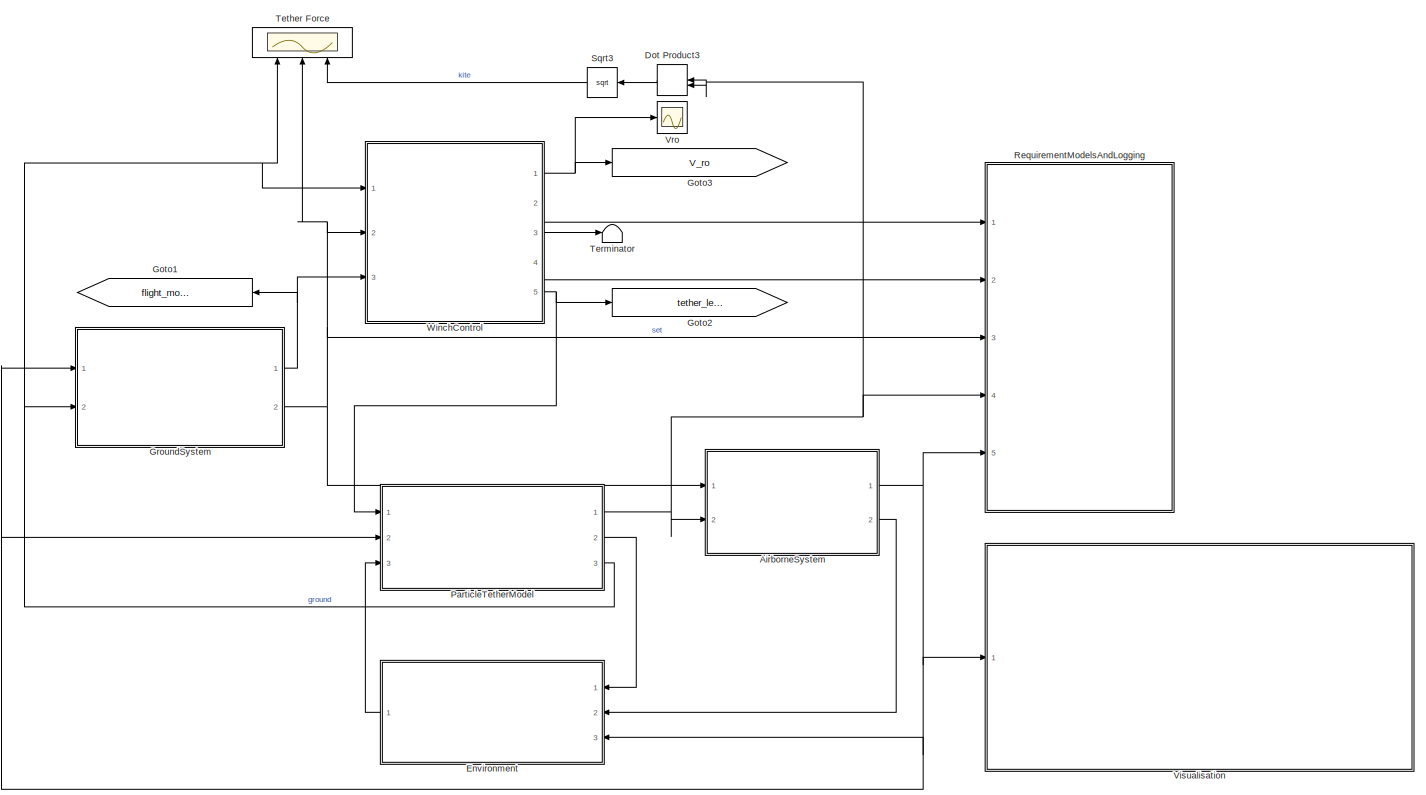
[diagram: root canvas - part 1/1, most of the canvas]
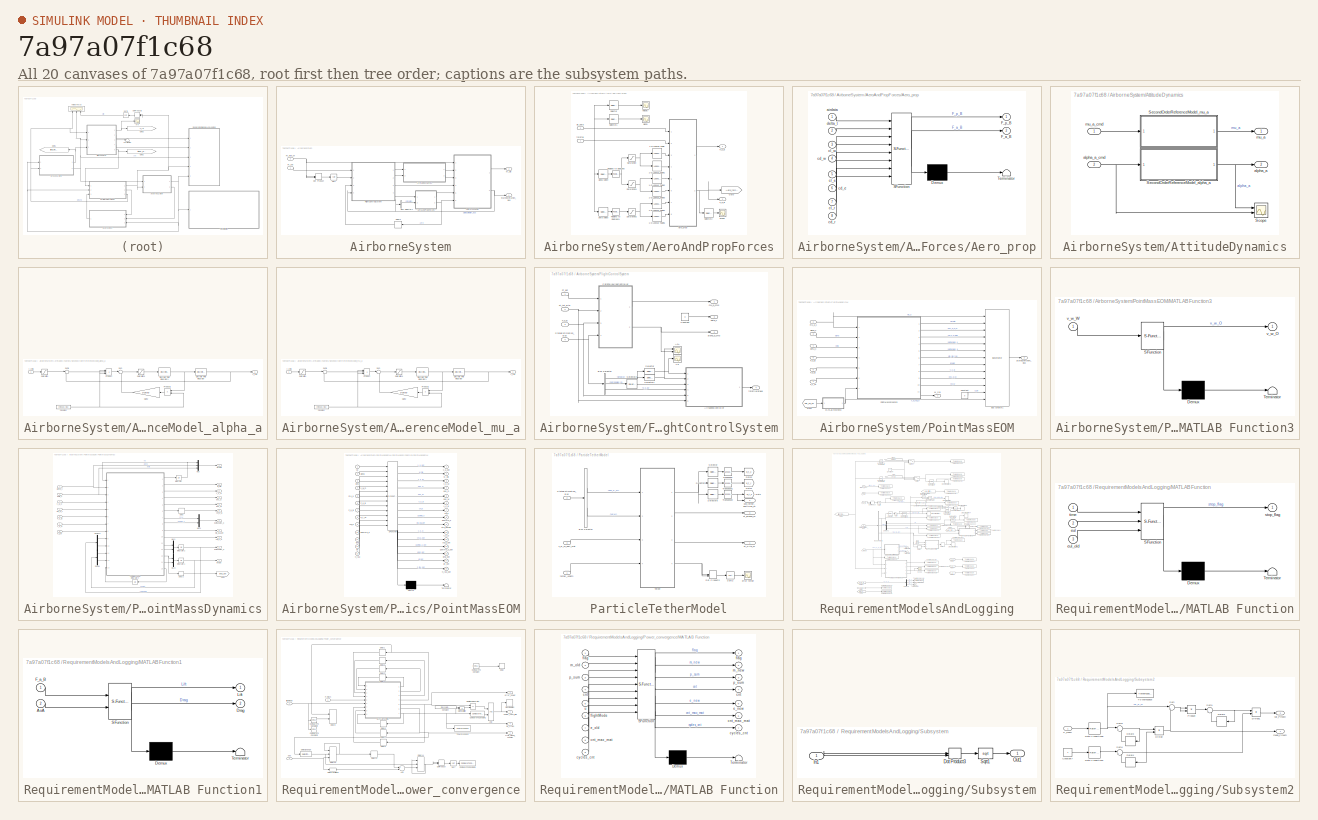
[diagram: thumbnail index - all 20 canvases of the model, root first then tree order]
MODEL slx_7a97a07f1c68
KIND model
CONFIG AbsTol = auto
CONFIG EnableMultiTasking = on
CONFIG FixedStep = dt
CONFIG InitFcn = close all
CONFIG MaxStep = auto
CONFIG MinStep = auto
CONFIG RelTol = 1e-3
CONFIG SampleTimeConstraint = Unconstrained
CONFIG Solver = ode4
CONFIG SolverName = ode4
CONFIG StartTime = 0.0
CONFIG StopTime = 300
BLOCK [SubSystem] AirborneSystem
  Ports = [2, 2]
  RequestExecContextInheritance = off
BLOCK [SubSystem] AirborneSystem/AeroAndPropForces
  Ports = [2, 2]
  RequestExecContextInheritance = off
BLOCK [Lookup_n-D] AirborneSystem/AeroAndPropForces/1-D Lookup Table
  BreakpointsForDimension1 = DE2019.initAircraft.alpha
  BreakpointsForDimension2 = [1 1]
  InternalRulePriority = Speed
  NumberOfTableDimensions = 1
  Ports = [1, 1]
  RndMeth = Simplest
  Table = DE2019.initAircraft.wing_cL_Static'
BLOCK [Lookup_n-D] AirborneSystem/AeroAndPropForces/1-D Lookup Table1
  BreakpointsForDimension1 = DE2019.initAircraft.alpha
  BreakpointsForDimension2 = [1 1]
  InternalRulePriority = Speed
  NumberOfTableDimensions = 1
  Ports = [1, 1]
  RndMeth = Simplest
  Table = DE2019.initAircraft.wing_cD_Static'
BLOCK [Lookup_n-D] AirborneSystem/AeroAndPropForces/1-D Lookup Table2
  BreakpointsForDimension1 = DE2019.alpha
  BreakpointsForDimension2 = [1 1]
  InternalRulePriority = Speed
  NumberOfTableDimensions = 1
  Ports = [1, 1]
  RndMeth = Simplest
  Table = DE2019.el_cL'
BLOCK [Lookup_n-D] AirborneSystem/AeroAndPropForces/1-D Lookup Table3
  BreakpointsForDimension1 = DE2019.alpha
  BreakpointsForDimension2 = [1 1]
  InternalRulePriority = Speed
  NumberOfTableDimensions = 1
  Ports = [1, 1]
  RndMeth = Simplest
  Table = DE2019.el_cD'
BLOCK [Lookup_n-D] AirborneSystem/AeroAndPropForces/1-D Lookup Table4
  BreakpointsForDimension1 = DE2019.alpha
  BreakpointsForDimension2 = [1 1]
  InternalRulePriority = Speed
  NumberOfTableDimensions = 1
  Ports = [1, 1]
  RndMeth = Simplest
  Table = DE2019.vs_cL'
BLOCK [Lookup_n-D] AirborneSystem/AeroAndPropForces/1-D Lookup Table5
  BreakpointsForDimension1 = DE2019.alpha
  BreakpointsForDimension2 = [1 1]
  InternalRulePriority = Speed
  NumberOfTableDimensions = 1
  Ports = [1, 1]
  RndMeth = Simplest
  Table = DE2019.vs_cD'
BLOCK [SubSystem] AirborneSystem/AeroAndPropForces/Aero_prop
  ErrorFcn = Stateflow.Translate.translate
  PermitHierarchicalResolution = ExplicitOnly
  Ports = [8, 2]
  RequestExecContextInheritance = off
  SFBlockType = MATLAB Function
  TreatAsAtomicUnit = on
BLOCK [Demux] AirborneSystem/AeroAndPropForces/Aero_prop/ Demux 
  Outputs = 1
  Ports = [1, 1]
BLOCK [S-Function] AirborneSystem/AeroAndPropForces/Aero_prop/ SFunction 
  EnableBusSupport = on
  FunctionName = sf_sfun
  Parameters = DE2019,ENVMT
  PortCounts = [8 3]
  Ports = [8, 3]
  SFcnIsStateOwnerBlock = off
  SFunctionDeploymentMode = off
  Tag = Stateflow S-Function 10
BLOCK [Terminator] AirborneSystem/AeroAndPropForces/Aero_prop/ Terminator 
BLOCK [Outport] AirborneSystem/AeroAndPropForces/Aero_prop/F_a_B
  IconDisplay = Port number
  Port = 2
BLOCK [Outport] AirborneSystem/AeroAndPropForces/Aero_prop/F_p_B
  IconDisplay = Port number
  VectorParamsAs1DForOutWhenUnconnected = off
BLOCK [Inport] AirborneSystem/AeroAndPropForces/Aero_prop/airdata
  IconDisplay = Port number
BLOCK [Inport] AirborneSystem/AeroAndPropForces/Aero_prop/cd_e
  IconDisplay = Port number
  Port = 6
BLOCK [Inport] AirborneSystem/AeroAndPropForces/Aero_prop/cd_r
  IconDisplay = Port number
  Port = 8
BLOCK [Inport] AirborneSystem/AeroAndPropForces/Aero_prop/cd_w
  IconDisplay = Port number
  Port = 4
BLOCK [Inport] AirborneSystem/AeroAndPropForces/Aero_prop/cl_e
  IconDisplay = Port number
  Port = 5
BLOCK [Inport] AirborneSystem/AeroAndPropForces/Aero_prop/cl_r
  IconDisplay = Port number
  Port = 7
BLOCK [Inport] AirborneSystem/AeroAndPropForces/Aero_prop/cl_w
  IconDisplay = Port number
  Port = 3
BLOCK [Inport] AirborneSystem/AeroAndPropForces/Aero_prop/delta_t
  IconDisplay = Port number
  Port = 2
BLOCK [Outport] AirborneSystem/AeroAndPropForces/F_a_B
  IconDisplay = Port number
  Port = 2
  VectorParamsAs1DForOutWhenUnconnected = off
BLOCK [Outport] AirborneSystem/AeroAndPropForces/F_p_B
  IconDisplay = Port number
  VectorParamsAs1DForOutWhenUnconnected = off
BLOCK [Goto] AirborneSystem/AeroAndPropForces/Goto
  GotoTag = Aero_forces
  TagVisibility = global
BLOCK [Reference] AirborneSystem/AeroAndPropForces/Radians to Degrees  REF=simulink_extras/Transformations/Radians
to Degrees
  Ports = [1, 1]
  SourceBlock = simulink_extras/Transformations/Radians\nto Degrees
  SourceProductBaseCode = SL
  SourceProductName = Simulink
  SourceType = RadiansToDegrees
BLOCK [Reference] AirborneSystem/AeroAndPropForces/Radians to Degrees1  REF=simulink_extras/Transformations/Radians
to Degrees
  Ports = [1, 1]
  SourceBlock = simulink_extras/Transformations/Radians\nto Degrees
  SourceProductBaseCode = SL
  SourceProductName = Simulink
  SourceType = RadiansToDegrees
BLOCK [Saturate] AirborneSystem/AeroAndPropForces/Saturation
  InputPortMap = u0
  LowerLimit = min(DE2019.initAircraft.alpha)
  Ports = [1, 1]
  UpperLimit = max(DE2019.initAircraft.alpha)
BLOCK [Saturate] AirborneSystem/AeroAndPropForces/Saturation1
  InputPortMap = u0
  LowerLimit = min(DE2019.alpha)
  Ports = [1, 1]
  UpperLimit = max(DE2019.alpha)
BLOCK [Saturate] AirborneSystem/AeroAndPropForces/Saturation2
  InputPortMap = u0
  LowerLimit = min(DE2019.alpha)
  Ports = [1, 1]
  UpperLimit = max(DE2019.alpha)
BLOCK [Scope] AirborneSystem/AeroAndPropForces/Scope
  Commented = on
  Floating = off
  NumInputPorts = 1
  Ports = [1]
  ScopeSpecificationString = Simulink.scopes.TimeScopeBlockCfg('CurrentConfiguration', extmgr.ConfigurationSet(extmgr.Configuration('Core','General UI',true),extmgr.Configuration('Core','Source UI',true),extmgr.Configuration('Sources','WiredSimulink',true,'DataLoggingVariableName','ScopeData2'),extmgr.Configuration('Visuals','Time Domain',true,'SerializedDisplays',{struct('MinYLimReal','-1000000.00000','MaxYLimReal','1000000....<+1510ch>
BLOCK [Selector] AirborneSystem/AeroAndPropForces/Selector
  Commented = on
  IndexOptions = Index vector (dialog)
  Indices = [1]
  InputPortWidth = 3
  OutputSizes = 1
  Ports = [1, 1]
BLOCK [Selector] AirborneSystem/AeroAndPropForces/Selector1
  Commented = on
  IndexOptions = Index vector (dialog)
  Indices = 2
  InputPortWidth = 3
  OutputSizes = 1
  Ports = [1, 1]
BLOCK [Selector] AirborneSystem/AeroAndPropForces/Selector2
  Commented = on
  IndexOptions = Index vector (dialog)
  Indices = 3
  InputPortWidth = 3
  OutputSizes = 1
  Ports = [1, 1]
BLOCK [Scope] AirborneSystem/AeroAndPropForces/Velocity
  Commented = on
  Floating = off
  NumInputPorts = 1
  Ports = [1]
  ScopeSpecificationString = Simulink.scopes.TimeScopeBlockCfg('CurrentConfiguration', extmgr.ConfigurationSet(extmgr.Configuration('Core','General UI',true),extmgr.Configuration('Core','Source UI',true),extmgr.Configuration('Sources','WiredSimulink',true,'DataLoggingVariableName','ScopeData1'),extmgr.Configuration('Visuals','Time Domain',true,'SerializedDisplays',{struct('MinYLimReal','-1.07114','MaxYLimReal','159.55281','YL...<+1473ch>
BLOCK [Inport] AirborneSystem/AeroAndPropForces/air_data
  IconDisplay = Port number
  Port = 2
BLOCK [Scope] AirborneSystem/AeroAndPropForces/alpha
  Commented = on
  Floating = off
  NumInputPorts = 1
  Ports = [1]
  ScopeSpecificationString = Simulink.scopes.TimeScopeBlockCfg('CurrentConfiguration', extmgr.ConfigurationSet(extmgr.Configuration('Core','General UI',true),extmgr.Configuration('Core','Source UI',true),extmgr.Configuration('Sources','WiredSimulink',true,'DataLoggingVariableName','ScopeData7'),extmgr.Configuration('Visuals','Time Domain',true,'SerializedDisplays',{struct('MinYLimReal','-0.20002','MaxYLimReal','0.08816','YLab...<+1412ch>
BLOCK [Selector] AirborneSystem/AeroAndPropForces/alpha select
  IndexOptions = Index vector (dialog)
  Indices = 2
  InputPortWidth = 3
  OutputSizes = 1
  Ports = [1, 1]
BLOCK [Selector] AirborneSystem/AeroAndPropForces/beta select
  IndexOptions = Index vector (dialog)
  Indices = 3
  InputPortWidth = 3
  OutputSizes = 1
  Ports = [1, 1]
BLOCK [Inport] AirborneSystem/AeroAndPropForces/throttle
  IconDisplay = Port number
BLOCK [SubSystem] AirborneSystem/AttitudeDynamics
  Ports = [2, 2]
  RequestExecContextInheritance = off
BLOCK [Scope] AirborneSystem/AttitudeDynamics/Scope
  Commented = on
  Floating = off
  NumInputPorts = 2
  Ports = [2]
  ScopeSpecificationString = Simulink.scopes.TimeScopeBlockCfg('CurrentConfiguration', extmgr.ConfigurationSet(extmgr.Configuration('Core','General UI',true),extmgr.Configuration('Core','Source UI',true),extmgr.Configuration('Sources','WiredSimulink',true,'DataLoggingVariableName','ScopeData3'),extmgr.Configuration('Visuals','Time Domain',true,'SerializedDisplays',{struct('MinYLimReal','-0.20289','MaxYLimReal','0.08072','YLab...<+1424ch>
BLOCK [SubSystem] AirborneSystem/AttitudeDynamics/SecondOrderReferenceModel_alpha_a
  Ports = [1, 1]
  RequestExecContextInheritance = off
BLOCK [Constant] AirborneSystem/AttitudeDynamics/SecondOrderReferenceModel_alpha_a/Constant
  Value = omega0_max
BLOCK [DiscreteIntegrator] AirborneSystem/AttitudeDynamics/SecondOrderReferenceModel_alpha_a/Discrete-Time Integrator
  ICPrevOutput = DiscIntNeverNeededParam
  ICPrevScaledInput = DiscIntNeverNeededParam
  InitialConditionSetting = Auto
  LimitOutput = on
  LowerSaturationLimit = y_min
  Ports = [1, 1]
  SampleTime = -1
  UpperSaturationLimit = y_max
BLOCK [DiscreteIntegrator] AirborneSystem/AttitudeDynamics/SecondOrderReferenceModel_alpha_a/Discrete-Time Integrator1
  ICPrevOutput = DiscIntNeverNeededParam
  ICPrevScaledInput = DiscIntNeverNeededParam
  InitialConditionSetting = Auto
  LimitOutput = on
  LowerSaturationLimit = yd_min
  Ports = [1, 1]
  SampleTime = -1
  UpperSaturationLimit = yd_max
BLOCK [Gain] AirborneSystem/AttitudeDynamics/SecondOrderReferenceModel_alpha_a/Gain2
  Gain = 2*zeta0
  OutDataTypeStr = Inherit: Inherit via internal rule
  ParamDataTypeStr = Inherit: Inherit via internal rule
  SaturateOnIntegerOverflow = off
BLOCK [Product] AirborneSystem/AttitudeDynamics/SecondOrderReferenceModel_alpha_a/Product
  InputSameDT = off
  Inputs = 3
  OutDataTypeStr = Inherit: Inherit via internal rule
  Ports = [3, 1]
  RndMeth = Floor
  SaturateOnIntegerOverflow = off
BLOCK [Product] AirborneSystem/AttitudeDynamics/SecondOrderReferenceModel_alpha_a/Product1
  InputSameDT = off
  OutDataTypeStr = Inherit: Inherit via internal rule
  Ports = [2, 1]
  RndMeth = Floor
  SaturateOnIntegerOverflow = off
BLOCK [Saturate] AirborneSystem/AttitudeDynamics/SecondOrderReferenceModel_alpha_a/Saturation
  InputPortMap = u0
  LowerLimit = y_min
  Ports = [1, 1]
  UpperLimit = y_max
BLOCK [Saturate] AirborneSystem/AttitudeDynamics/SecondOrderReferenceModel_alpha_a/Saturation1
  InputPortMap = u0
  LowerLimit = y2d_min
  Ports = [1, 1]
  UpperLimit = y2d_max
BLOCK [Sum] AirborneSystem/AttitudeDynamics/SecondOrderReferenceModel_alpha_a/Sum
  IconShape = round
  InputSameDT = off
  Inputs = |+-
  OutDataTypeStr = Inherit: Inherit via internal rule
  Ports = [2, 1]
  SaturateOnIntegerOverflow = off
BLOCK [Sum] AirborneSystem/AttitudeDynamics/SecondOrderReferenceModel_alpha_a/Sum1
  IconShape = round
  InputSameDT = off
  Inputs = |+-
  OutDataTypeStr = Inherit: Inherit via internal rule
  Ports = [2, 1]
  SaturateOnIntegerOverflow = off
BLOCK [Inport] AirborneSystem/AttitudeDynamics/SecondOrderReferenceModel_alpha_a/y_cmd
  IconDisplay = Port number
BLOCK [Outport] AirborneSystem/AttitudeDynamics/SecondOrderReferenceModel_alpha_a/y_ref
  IconDisplay = Port number
  VectorParamsAs1DForOutWhenUnconnected = off
BLOCK [SubSystem] AirborneSystem/AttitudeDynamics/SecondOrderReferenceModel_mu_a
  Ports = [1, 1]
  RequestExecContextInheritance = off
BLOCK [Constant] AirborneSystem/AttitudeDynamics/SecondOrderReferenceModel_mu_a/Constant
  Value = omega0_max
BLOCK [DiscreteIntegrator] AirborneSystem/AttitudeDynamics/SecondOrderReferenceModel_mu_a/Discrete-Time Integrator
  ICPrevOutput = DiscIntNeverNeededParam
  ICPrevScaledInput = DiscIntNeverNeededParam
  InitialConditionSetting = Auto
  LimitOutput = on
  LowerSaturationLimit = y_min
  Ports = [1, 1]
  SampleTime = -1
  UpperSaturationLimit = y_max
BLOCK [DiscreteIntegrator] AirborneSystem/AttitudeDynamics/SecondOrderReferenceModel_mu_a/Discrete-Time Integrator1
  ICPrevOutput = DiscIntNeverNeededParam
  ICPrevScaledInput = DiscIntNeverNeededParam
  InitialConditionSetting = Auto
  LimitOutput = on
  LowerSaturationLimit = yd_min
  Ports = [1, 1]
  SampleTime = -1
  UpperSaturationLimit = yd_max
BLOCK [Gain] AirborneSystem/AttitudeDynamics/SecondOrderReferenceModel_mu_a/Gain2
  Gain = 2*zeta0
  OutDataTypeStr = Inherit: Inherit via internal rule
  ParamDataTypeStr = Inherit: Inherit via internal rule
  SaturateOnIntegerOverflow = off
BLOCK [Product] AirborneSystem/AttitudeDynamics/SecondOrderReferenceModel_mu_a/Product
  InputSameDT = off
  Inputs = 3
  OutDataTypeStr = Inherit: Inherit via internal rule
  Ports = [3, 1]
  RndMeth = Floor
  SaturateOnIntegerOverflow = off
BLOCK [Product] AirborneSystem/AttitudeDynamics/SecondOrderReferenceModel_mu_a/Product1
  InputSameDT = off
  OutDataTypeStr = Inherit: Inherit via internal rule
  Ports = [2, 1]
  RndMeth = Floor
  SaturateOnIntegerOverflow = off
BLOCK [Saturate] AirborneSystem/AttitudeDynamics/SecondOrderReferenceModel_mu_a/Saturation
  InputPortMap = u0
  LowerLimit = y_min
  Ports = [1, 1]
  UpperLimit = y_max
BLOCK [Saturate] AirborneSystem/AttitudeDynamics/SecondOrderReferenceModel_mu_a/Saturation1
  InputPortMap = u0
  LowerLimit = y2d_min
  Ports = [1, 1]
  UpperLimit = y2d_max
BLOCK [Sum] AirborneSystem/AttitudeDynamics/SecondOrderReferenceModel_mu_a/Sum
  IconShape = round
  InputSameDT = off
  Inputs = |+-
  OutDataTypeStr = Inherit: Inherit via internal rule
  Ports = [2, 1]
  SaturateOnIntegerOverflow = off
BLOCK [Sum] AirborneSystem/AttitudeDynamics/SecondOrderReferenceModel_mu_a/Sum1
  IconShape = round
  InputSameDT = off
  Inputs = |+-
  OutDataTypeStr = Inherit: Inherit via internal rule
  Ports = [2, 1]
  SaturateOnIntegerOverflow = off
BLOCK [Inport] AirborneSystem/AttitudeDynamics/SecondOrderReferenceModel_mu_a/y_cmd
  IconDisplay = Port number
BLOCK [Outport] AirborneSystem/AttitudeDynamics/SecondOrderReferenceModel_mu_a/y_ref
  IconDisplay = Port number
  VectorParamsAs1DForOutWhenUnconnected = off
BLOCK [Outport] AirborneSystem/AttitudeDynamics/alpha_a
  IconDisplay = Port number
  Port = 2
  VectorParamsAs1DForOutWhenUnconnected = off
BLOCK [Inport] AirborneSystem/AttitudeDynamics/alpha_a_cmd
  IconDisplay = Port number
  Port = 2
BLOCK [Outport] AirborneSystem/AttitudeDynamics/mu_a
  IconDisplay = Port number
  VectorParamsAs1DForOutWhenUnconnected = off
BLOCK [Inport] AirborneSystem/AttitudeDynamics/mu_a_cmd
  IconDisplay = Port number
BLOCK [BusSelector] AirborneSystem/Bus Selector1
  OutputAsBus = off
  OutputSignals = airdata
  Ports = [1, 1]
BLOCK [Delay] AirborneSystem/Delay2
  DelayLength = 1
  InitialCondition = [0;0;DE2019.mass*ENVMT.g]
  InputPortMap = u0
  Ports = [1, 1]
BLOCK [DotProduct] AirborneSystem/Dot Product
  OutDataTypeStr = Inherit: Inherit via internal rule
BLOCK [SubSystem] AirborneSystem/FlightControlSystem
  Ports = [4, 4]
  RequestExecContextInheritance = off
BLOCK [SubSystem] AirborneSystem/FlightControlSystem/AirspeedController
  Ports = [6, 1]
  ReferencedSubsystem = AirspeedController
  RequestExecContextInheritance = off
BLOCK [Scope] AirborneSystem/FlightControlSystem/AoA
  Floating = off
  NumInputPorts = 2
  Ports = [2]
  ScopeSpecificationString = Simulink.scopes.TimeScopeBlockCfg('CurrentConfiguration', extmgr.ConfigurationSet(extmgr.Configuration('Core','General UI',true),extmgr.Configuration('Core','Source UI',true),extmgr.Configuration('Sources','WiredSimulink',true,'DataLoggingVariableName','ScopeData2'),extmgr.Configuration('Visuals','Time Domain',true,'SerializedDisplays',{struct('MinYLimReal','-0.39675','MaxYLimReal','0.02807','YLab...<+1466ch>
BLOCK [BusSelector] AirborneSystem/FlightControlSystem/Bus Selector
  OutputAsBus = off
  OutputSignals = airdata,pathangles_a,v_k_B
  Ports = [1, 3]
BLOCK [Constant] AirborneSystem/FlightControlSystem/Constant
  Value = 0
BLOCK [Inport] AirborneSystem/FlightControlSystem/F_a_B
  IconDisplay = Port number
  Port = 3
BLOCK [Inport] AirborneSystem/FlightControlSystem/Ft_set
  IconDisplay = Port number
BLOCK [Inport] AirborneSystem/FlightControlSystem/Ft_tot_kite
  IconDisplay = Port number
  Port = 2
BLOCK [SubSystem] AirborneSystem/FlightControlSystem/PathFollowingController
  Ports = [4, 2]
  ReferencedSubsystem = PathFollowingController
  RequestExecContextInheritance = off
BLOCK [Selector] AirborneSystem/FlightControlSystem/Selector
  IndexOptions = Index vector (dialog)
  Indices = 1
  InputPortWidth = 3
  OutputSizes = 1
  Ports = [1, 1]
BLOCK [Selector] AirborneSystem/FlightControlSystem/Selector1
  IndexOptions = Index vector (dialog)
  Indices = 2
  InputPortWidth = 3
  OutputSizes = 1
  Ports = [1, 1]
BLOCK [Selector] AirborneSystem/FlightControlSystem/Selector2
  IndexOptions = Index vector (dialog)
  Indices = 2
  InputPortWidth = 2
  OutputSizes = 1
  Ports = [1, 1]
BLOCK [Inport] AirborneSystem/FlightControlSystem/StateEstimation_Bus
  IconDisplay = Port number
  Port = 4
BLOCK [Scope] AirborneSystem/FlightControlSystem/Va
  Floating = off
  NumInputPorts = 1
  Ports = [1]
  ScopeSpecificationString = Simulink.scopes.TimeScopeBlockCfg('CurrentConfiguration', extmgr.ConfigurationSet(extmgr.Configuration('Core','General UI',true),extmgr.Configuration('Core','Source UI',true),extmgr.Configuration('Sources','WiredSimulink',true,'DataLoggingVariableName','ScopeData1'),extmgr.Configuration('Visuals','Time Domain',true,'SerializedDisplays',{struct('MinYLimReal','0.22595','MaxYLimReal','147.77147','YLa...<+1446ch>
BLOCK [Outport] AirborneSystem/FlightControlSystem/alpha_a_cmd
  IconDisplay = Port number
  Port = 2
  VectorParamsAs1DForOutWhenUnconnected = off
BLOCK [Outport] AirborneSystem/FlightControlSystem/beta_c
  IconDisplay = Port number
  Port = 3
  VectorParamsAs1DForOutWhenUnconnected = off
BLOCK [Outport] AirborneSystem/FlightControlSystem/mu_a_cmd
  IconDisplay = Port number
  VectorParamsAs1DForOutWhenUnconnected = off
BLOCK [Outport] AirborneSystem/FlightControlSystem/throttle//brake
  IconDisplay = Port number
  Port = 4
  VectorParamsAs1DForOutWhenUnconnected = off
BLOCK [Inport] AirborneSystem/Ft_Kite_W
  IconDisplay = Port number
  Port = 2
BLOCK [Inport] AirborneSystem/Ft_set
  IconDisplay = Port number
BLOCK [Outport] AirborneSystem/M_OB
  IconDisplay = Port number
  Port = 2
  VectorParamsAs1DForOutWhenUnconnected = off
BLOCK [SubSystem] AirborneSystem/PointMassEOM
  Ports = [6, 2]
  RequestExecContextInheritance = off
BLOCK [BusCreator] AirborneSystem/PointMassEOM/Bus Creator1
  DisplayOption = bar
  InheritFromInputs = on
  Inputs = 13
  Ports = [13, 1]
BLOCK [Constant] AirborneSystem/PointMassEOM/Constant
  Value = 0
BLOCK [Inport] AirborneSystem/PointMassEOM/F_a_B
  IconDisplay = Port number
  Port = 6
  PortDimensions = [3,1]
BLOCK [Inport] AirborneSystem/PointMassEOM/F_p_B
  IconDisplay = Port number
  Port = 5
  PortDimensions = [3,1]
BLOCK [Inport] AirborneSystem/PointMassEOM/F_t_W
  IconDisplay = Port number
  PortDimensions = [3,1]
BLOCK [From] AirborneSystem/PointMassEOM/From
  GotoTag = vel_W_W
  TagVisibility = global
BLOCK [SubSystem] AirborneSystem/PointMassEOM/MATLAB Function3
  ErrorFcn = Stateflow.Translate.translate
  PermitHierarchicalResolution = ExplicitOnly
  Ports = [1, 1]
  RequestExecContextInheritance = off
  SFBlockType = MATLAB Function
  TreatAsAtomicUnit = on
BLOCK [Demux] AirborneSystem/PointMassEOM/MATLAB Function3/ Demux 
  Outputs = 1
  Ports = [1, 1]
BLOCK [S-Function] AirborneSystem/PointMassEOM/MATLAB Function3/ SFunction 
  EnableBusSupport = on
  FunctionName = sf_sfun
  Parameters = ENVMT
  PortCounts = [1 2]
  Ports = [1, 2]
  SFcnIsStateOwnerBlock = off
  SFunctionDeploymentMode = off
  Tag = Stateflow S-Function 35
BLOCK [Terminator] AirborneSystem/PointMassEOM/MATLAB Function3/ Terminator 
BLOCK [Outport] AirborneSystem/PointMassEOM/MATLAB Function3/v_w_O
  IconDisplay = Port number
  VectorParamsAs1DForOutWhenUnconnected = off
BLOCK [Inport] AirborneSystem/PointMassEOM/MATLAB Function3/v_w_W
  IconDisplay = Port number
BLOCK [Outport] AirborneSystem/PointMassEOM/M_OB
  IconDisplay = Port number
  PortDimensions = [3,3]
  VectorParamsAs1DForOutWhenUnconnected = off
BLOCK [SubSystem] AirborneSystem/PointMassEOM/PointMassDynamics
  Ports = [7, 11]
  RequestExecContextInheritance = off
BLOCK [Delay] AirborneSystem/PointMassEOM/PointMassDynamics/Delay
  DelayLength = 1
  InitialCondition = simInit.vel_B_init
  InputPortMap = u0
  Ports = [1, 1]
BLOCK [Delay] AirborneSystem/PointMassEOM/PointMassDynamics/Delay2
  DelayLength = 1
  InputPortMap = u0
  Ports = [1, 1]
BLOCK [Demux] AirborneSystem/PointMassEOM/PointMassDynamics/Demux
  DisplayOption = bar
  Outputs = 2
  Ports = [1, 2]
BLOCK [Demux] AirborneSystem/PointMassEOM/PointMassDynamics/Demux2
  DisplayOption = bar
  Outputs = 2
  Ports = [1, 2]
BLOCK [Inport] AirborneSystem/PointMassEOM/PointMassDynamics/F_a_B
  IconDisplay = Port number
  Port = 4
  PortDimensions = [3,1]
BLOCK [Inport] AirborneSystem/PointMassEOM/PointMassDynamics/F_p_B
  IconDisplay = Port number
  Port = 5
  PortDimensions = [3,1]
BLOCK [Inport] AirborneSystem/PointMassEOM/PointMassDynamics/F_t_W
  IconDisplay = Port number
  Port = 6
  PortDimensions = [3,1]
BLOCK [Goto] AirborneSystem/PointMassEOM/PointMassDynamics/Goto1
  GotoTag = long_dot
  TagVisibility = global
BLOCK [Integrator] AirborneSystem/PointMassEOM/PointMassDynamics/Integrator
  InitialCondition = simInit.vel_B_init(1)
  Ports = [1, 1]
BLOCK [Integrator] AirborneSystem/PointMassEOM/PointMassDynamics/Integrator1
  InitialCondition = [simInit.long_init;simInit.lat_init]
  Ports = [1, 1]
  WrapState = on
BLOCK [Integrator] AirborneSystem/PointMassEOM/PointMassDynamics/Integrator2
  InitialCondition = zeros(2,1)
  Ports = [1, 1]
  WrapState = on
BLOCK [Integrator] AirborneSystem/PointMassEOM/PointMassDynamics/Integrator4
  InitialCondition = norm(simInit.pos_O_init)
  Ports = [1, 1]
BLOCK [Outport] AirborneSystem/PointMassEOM/PointMassDynamics/M_OB
  IconDisplay = Port number
  Port = 11
  PortDimensions = [3,3]
  VectorParamsAs1DForOutWhenUnconnected = off
BLOCK [Mux] AirborneSystem/PointMassEOM/PointMassDynamics/Mux
  DisplayOption = bar
  Inputs = 3
  Ports = [3, 1]
BLOCK [Mux] AirborneSystem/PointMassEOM/PointMassDynamics/Mux1
  DisplayOption = bar
  Inputs = 2
  Ports = [2, 1]
BLOCK [Mux] AirborneSystem/PointMassEOM/PointMassDynamics/Mux3
  DisplayOption = bar
  Inputs = 2
  Ports = [2, 1]
BLOCK [Mux] AirborneSystem/PointMassEOM/PointMassDynamics/Mux4
  DisplayOption = bar
  Inputs = 2
  Ports = [2, 1]
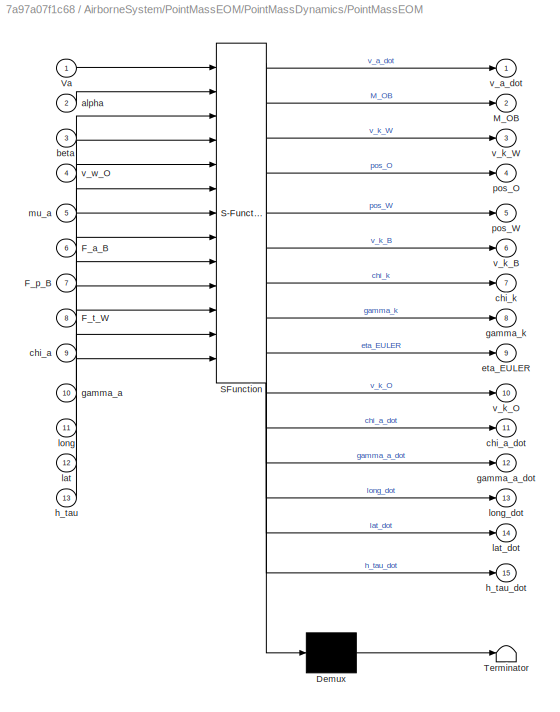
BLOCK [SubSystem] AirborneSystem/PointMassEOM/PointMassDynamics/PointMassEOM
  ErrorFcn = Stateflow.Translate.translate
  PermitHierarchicalResolution = ExplicitOnly
  Ports = [13, 15]
  RequestExecContextInheritance = off
  SFBlockType = MATLAB Function
  TreatAsAtomicUnit = on
BLOCK [Demux] AirborneSystem/PointMassEOM/PointMassDynamics/PointMassEOM/ Demux 
  Outputs = 1
  Ports = [1, 1]
BLOCK [S-Function] AirborneSystem/PointMassEOM/PointMassDynamics/PointMassEOM/ SFunction 
  EnableBusSupport = on
  FunctionName = sf_sfun
  Parameters = DE2019,ENVMT
  PortCounts = [13 16]
  Ports = [13, 16]
  SFcnIsStateOwnerBlock = off
  SFunctionDeploymentMode = off
  Tag = Stateflow S-Function 9
BLOCK [Terminator] AirborneSystem/PointMassEOM/PointMassDynamics/PointMassEOM/ Terminator 
BLOCK [Inport] AirborneSystem/PointMassEOM/PointMassDynamics/PointMassEOM/F_a_B
  IconDisplay = Port number
  Port = 6
BLOCK [Inport] AirborneSystem/PointMassEOM/PointMassDynamics/PointMassEOM/F_p_B
  IconDisplay = Port number
  Port = 7
BLOCK [Inport] AirborneSystem/PointMassEOM/PointMassDynamics/PointMassEOM/F_t_W
  IconDisplay = Port number
  Port = 8
BLOCK [Outport] AirborneSystem/PointMassEOM/PointMassDynamics/PointMassEOM/M_OB
  IconDisplay = Port number
  Port = 2
  VectorParamsAs1DForOutWhenUnconnected = off
BLOCK [Inport] AirborneSystem/PointMassEOM/PointMassDynamics/PointMassEOM/Va
  IconDisplay = Port number
BLOCK [Inport] AirborneSystem/PointMassEOM/PointMassDynamics/PointMassEOM/alpha
  IconDisplay = Port number
  Port = 2
BLOCK [Inport] AirborneSystem/PointMassEOM/PointMassDynamics/PointMassEOM/beta
  IconDisplay = Port number
  Port = 3
BLOCK [Inport] AirborneSystem/PointMassEOM/PointMassDynamics/PointMassEOM/chi_a
  IconDisplay = Port number
  Port = 9
BLOCK [Outport] AirborneSystem/PointMassEOM/PointMassDynamics/PointMassEOM/chi_a_dot
  IconDisplay = Port number
  Port = 11
  VectorParamsAs1DForOutWhenUnconnected = off
BLOCK [Outport] AirborneSystem/PointMassEOM/PointMassDynamics/PointMassEOM/chi_k
  IconDisplay = Port number
  Port = 7
  VectorParamsAs1DForOutWhenUnconnected = off
BLOCK [Outport] AirborneSystem/PointMassEOM/PointMassDynamics/PointMassEOM/eta_EULER
  IconDisplay = Port number
  Port = 9
  VectorParamsAs1DForOutWhenUnconnected = off
BLOCK [Inport] AirborneSystem/PointMassEOM/PointMassDynamics/PointMassEOM/gamma_a
  IconDisplay = Port number
  Port = 10
BLOCK [Outport] AirborneSystem/PointMassEOM/PointMassDynamics/PointMassEOM/gamma_a_dot
  IconDisplay = Port number
  Port = 12
  VectorParamsAs1DForOutWhenUnconnected = off
BLOCK [Outport] AirborneSystem/PointMassEOM/PointMassDynamics/PointMassEOM/gamma_k
  IconDisplay = Port number
  Port = 8
  VectorParamsAs1DForOutWhenUnconnected = off
BLOCK [Inport] AirborneSystem/PointMassEOM/PointMassDynamics/PointMassEOM/h_tau
  IconDisplay = Port number
  Port = 13
BLOCK [Outport] AirborneSystem/PointMassEOM/PointMassDynamics/PointMassEOM/h_tau_dot
  IconDisplay = Port number
  Port = 15
  VectorParamsAs1DForOutWhenUnconnected = off
BLOCK [Inport] AirborneSystem/PointMassEOM/PointMassDynamics/PointMassEOM/lat
  IconDisplay = Port number
  Port = 12
BLOCK [Outport] AirborneSystem/PointMassEOM/PointMassDynamics/PointMassEOM/lat_dot
  IconDisplay = Port number
  Port = 14
  VectorParamsAs1DForOutWhenUnconnected = off
BLOCK [Inport] AirborneSystem/PointMassEOM/PointMassDynamics/PointMassEOM/long
  IconDisplay = Port number
  Port = 11
BLOCK [Outport] AirborneSystem/PointMassEOM/PointMassDynamics/PointMassEOM/long_dot
  IconDisplay = Port number
  Port = 13
  VectorParamsAs1DForOutWhenUnconnected = off
BLOCK [Inport] AirborneSystem/PointMassEOM/PointMassDynamics/PointMassEOM/mu_a
  IconDisplay = Port number
  Port = 5
BLOCK [Outport] AirborneSystem/PointMassEOM/PointMassDynamics/PointMassEOM/pos_O
  IconDisplay = Port number
  Port = 4
  VectorParamsAs1DForOutWhenUnconnected = off
BLOCK [Outport] AirborneSystem/PointMassEOM/PointMassDynamics/PointMassEOM/pos_W
  IconDisplay = Port number
  Port = 5
  VectorParamsAs1DForOutWhenUnconnected = off
BLOCK [Outport] AirborneSystem/PointMassEOM/PointMassDynamics/PointMassEOM/v_a_dot
  IconDisplay = Port number
  VectorParamsAs1DForOutWhenUnconnected = off
BLOCK [Outport] AirborneSystem/PointMassEOM/PointMassDynamics/PointMassEOM/v_k_B
  IconDisplay = Port number
  Port = 6
  VectorParamsAs1DForOutWhenUnconnected = off
BLOCK [Outport] AirborneSystem/PointMassEOM/PointMassDynamics/PointMassEOM/v_k_O
  IconDisplay = Port number
  Port = 10
  VectorParamsAs1DForOutWhenUnconnected = off
BLOCK [Outport] AirborneSystem/PointMassEOM/PointMassDynamics/PointMassEOM/v_k_W
  IconDisplay = Port number
  Port = 3
  VectorParamsAs1DForOutWhenUnconnected = off
BLOCK [Inport] AirborneSystem/PointMassEOM/PointMassDynamics/PointMassEOM/v_w_O
  IconDisplay = Port number
  Port = 4
BLOCK [Outport] AirborneSystem/PointMassEOM/PointMassDynamics/airdata
  IconDisplay = Port number
  PortDimensions = 3
  VectorParamsAs1DForOutWhenUnconnected = off
BLOCK [Inport] AirborneSystem/PointMassEOM/PointMassDynamics/alpha_c
  IconDisplay = Port number
  Port = 2
BLOCK [Inport] AirborneSystem/PointMassEOM/PointMassDynamics/beta_c
  IconDisplay = Port number
  Port = 3
BLOCK [Outport] AirborneSystem/PointMassEOM/PointMassDynamics/eta_EULER
  IconDisplay = Port number
  Port = 6
  PortDimensions = [3,1]
  VectorParamsAs1DForOutWhenUnconnected = off
BLOCK [Outport] AirborneSystem/PointMassEOM/PointMassDynamics/longlat
  IconDisplay = Port number
  Port = 7
  PortDimensions = 2
  VectorParamsAs1DForOutWhenUnconnected = off
BLOCK [Inport] AirborneSystem/PointMassEOM/PointMassDynamics/mu_a_c
  IconDisplay = Port number
BLOCK [Outport] AirborneSystem/PointMassEOM/PointMassDynamics/pathangles_a
  IconDisplay = Port number
  Port = 5
  PortDimensions = 2
  VectorParamsAs1DForOutWhenUnconnected = off
BLOCK [Outport] AirborneSystem/PointMassEOM/PointMassDynamics/pathangles_k
  IconDisplay = Port number
  Port = 4
  PortDimensions = 2
  VectorParamsAs1DForOutWhenUnconnected = off
BLOCK [Outport] AirborneSystem/PointMassEOM/PointMassDynamics/pos_O
  IconDisplay = Port number
  Port = 2
  PortDimensions = [3,1]
  VectorParamsAs1DForOutWhenUnconnected = off
BLOCK [Outport] AirborneSystem/PointMassEOM/PointMassDynamics/pos_W
  IconDisplay = Port number
  Port = 9
  PortDimensions = [3,1]
  VectorParamsAs1DForOutWhenUnconnected = off
BLOCK [Outport] AirborneSystem/PointMassEOM/PointMassDynamics/v_k_W
  IconDisplay = Port number
  Port = 10
  PortDimensions = [3,1]
  VectorParamsAs1DForOutWhenUnconnected = off
BLOCK [Inport] AirborneSystem/PointMassEOM/PointMassDynamics/v_w_O
  IconDisplay = Port number
  Port = 7
BLOCK [Outport] AirborneSystem/PointMassEOM/PointMassDynamics/vel_k_B
  IconDisplay = Port number
  Port = 8
  PortDimensions = [3,1]
  VectorParamsAs1DForOutWhenUnconnected = off
BLOCK [Outport] AirborneSystem/PointMassEOM/PointMassDynamics/vel_k_O
  IconDisplay = Port number
  Port = 3
  PortDimensions = [3,1]
  VectorParamsAs1DForOutWhenUnconnected = off
BLOCK [Outport] AirborneSystem/PointMassEOM/StateEstimation_Bus
  IconDisplay = Port number
  Port = 2
  VectorParamsAs1DForOutWhenUnconnected = off
BLOCK [Inport] AirborneSystem/PointMassEOM/alpha_c
  IconDisplay = Port number
  Port = 3
BLOCK [Inport] AirborneSystem/PointMassEOM/beta_c
  IconDisplay = Port number
  Port = 4
BLOCK [Inport] AirborneSystem/PointMassEOM/mu_a_c
  IconDisplay = Port number
  Port = 2
BLOCK [Sqrt] AirborneSystem/Sqrt
BLOCK [Outport] AirborneSystem/StateEstimation_Bus
  IconDisplay = Port number
  VectorParamsAs1DForOutWhenUnconnected = off
BLOCK [DotProduct] Dot Product3
  Commented = on
  OutDataTypeStr = Inherit: Inherit via internal rule
BLOCK [SubSystem] Environment
  Ports = [3, 1]
  ReferencedSubsystem = Environment
  RequestExecContextInheritance = off
BLOCK [Goto] Goto1
  GotoTag = flight_mode
  TagVisibility = global
BLOCK [Goto] Goto2
  GotoTag = tether_length
  TagVisibility = global
BLOCK [Goto] Goto3
  GotoTag = V_ro
  TagVisibility = global
BLOCK [SubSystem] GroundSystem
  Ports = [2, 2]
  ReferencedSubsystem = GroundSystem
  RequestExecContextInheritance = off
BLOCK [SubSystem] ParticleTetherModel
  Ports = [3, 3]
  RequestExecContextInheritance = off
BLOCK [BusSelector] ParticleTetherModel/Bus Selector
  OutputAsBus = off
  OutputSignals = pos_G_W,vel_W
  Ports = [1, 2]
BLOCK [DotProduct] ParticleTetherModel/Dot Product2
  Commented = on
  OutDataTypeStr = Inherit: Inherit via internal rule
BLOCK [Outport] ParticleTetherModel/Ft_Kite_W
  IconDisplay = Port number
  VectorParamsAs1DForOutWhenUnconnected = off
BLOCK [Outport] ParticleTetherModel/Ft_ground_W
  IconDisplay = Port number
  Port = 3
  VectorParamsAs1DForOutWhenUnconnected = off
BLOCK [Goto] ParticleTetherModel/Goto
  GotoTag = p_t_z
  TagVisibility = global
BLOCK [Goto] ParticleTetherModel/Goto1
  GotoTag = p_t_y
  TagVisibility = global
BLOCK [Goto] ParticleTetherModel/Goto2
  GotoTag = p_t_x
  TagVisibility = global
BLOCK [Selector] ParticleTetherModel/Selector
  IndexOptions = Index vector (dialog),Select all
  Indices = 1,1
  InputPortWidth = 3
  NumberOfDimensions = 2
  OutputSizes = 1,1
  Ports = [1, 1]
BLOCK [Selector] ParticleTetherModel/Selector4
  IndexOptions = Index vector (dialog),Select all
  Indices = 2,1
  InputPortWidth = 3
  NumberOfDimensions = 2
  OutputSizes = 1,1
  Ports = [1, 1]
BLOCK [Selector] ParticleTetherModel/Selector5
  IndexOptions = Index vector (dialog),Select all
  Indices = 3,1
  InputPortWidth = 3
  NumberOfDimensions = 2
  OutputSizes = 1,1
  Ports = [1, 1]
BLOCK [Sqrt] ParticleTetherModel/Sqrt2
  Commented = on
BLOCK [Inport] ParticleTetherModel/StateEstimation_Bus
  IconDisplay = Port number
  Port = 2
BLOCK [SubSystem] ParticleTetherModel/Tether
  Ports = [4, 4]
  ReferencedSubsystem = Tether_dynamics_R2019B
  RequestExecContextInheritance = off
BLOCK [Math] ParticleTetherModel/Transpose
  Operator = transpose
  Ports = [1, 1]
  SignedPower = off
BLOCK [Math] ParticleTetherModel/Transpose1
  Operator = transpose
  Ports = [1, 1]
  SignedPower = off
BLOCK [Math] ParticleTetherModel/Transpose2
  Operator = transpose
  Ports = [1, 1]
  SignedPower = off
BLOCK [Scope] ParticleTetherModel/error tether
  Commented = on
  Floating = off
  NumInputPorts = 1
  Ports = [1]
  ScopeSpecificationString = Simulink.scopes.TimeScopeBlockCfg('CurrentConfiguration', extmgr.ConfigurationSet(extmgr.Configuration('Core','General UI',true),extmgr.Configuration('Core','Source UI',true),extmgr.Configuration('Sources','WiredSimulink',true,'DataLoggingVariableName','ScopeData2'),extmgr.Configuration('Visuals','Time Domain',true,'SerializedDisplays',{struct('MinYLimReal','-91.22413','MaxYLimReal','821.01716','Y...<+1448ch>
BLOCK [Outport] ParticleTetherModel/pos_tether_particles_W
  IconDisplay = Port number
  Port = 2
  VectorParamsAs1DForOutWhenUnconnected = off
BLOCK [Inport] ParticleTetherModel/tether_length
  IconDisplay = Port number
BLOCK [Inport] ParticleTetherModel/v_w_W_part_mat
  IconDisplay = Port number
  Port = 3
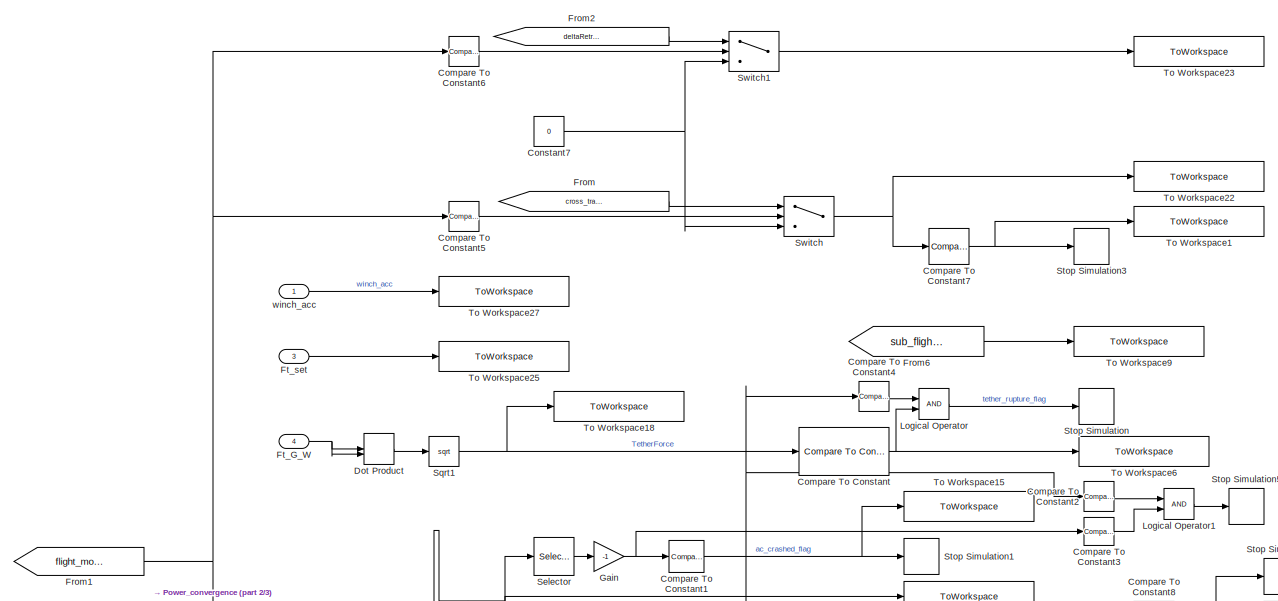
[diagram: RequirementModelsAndLogging - part 1/3, full width, top band]
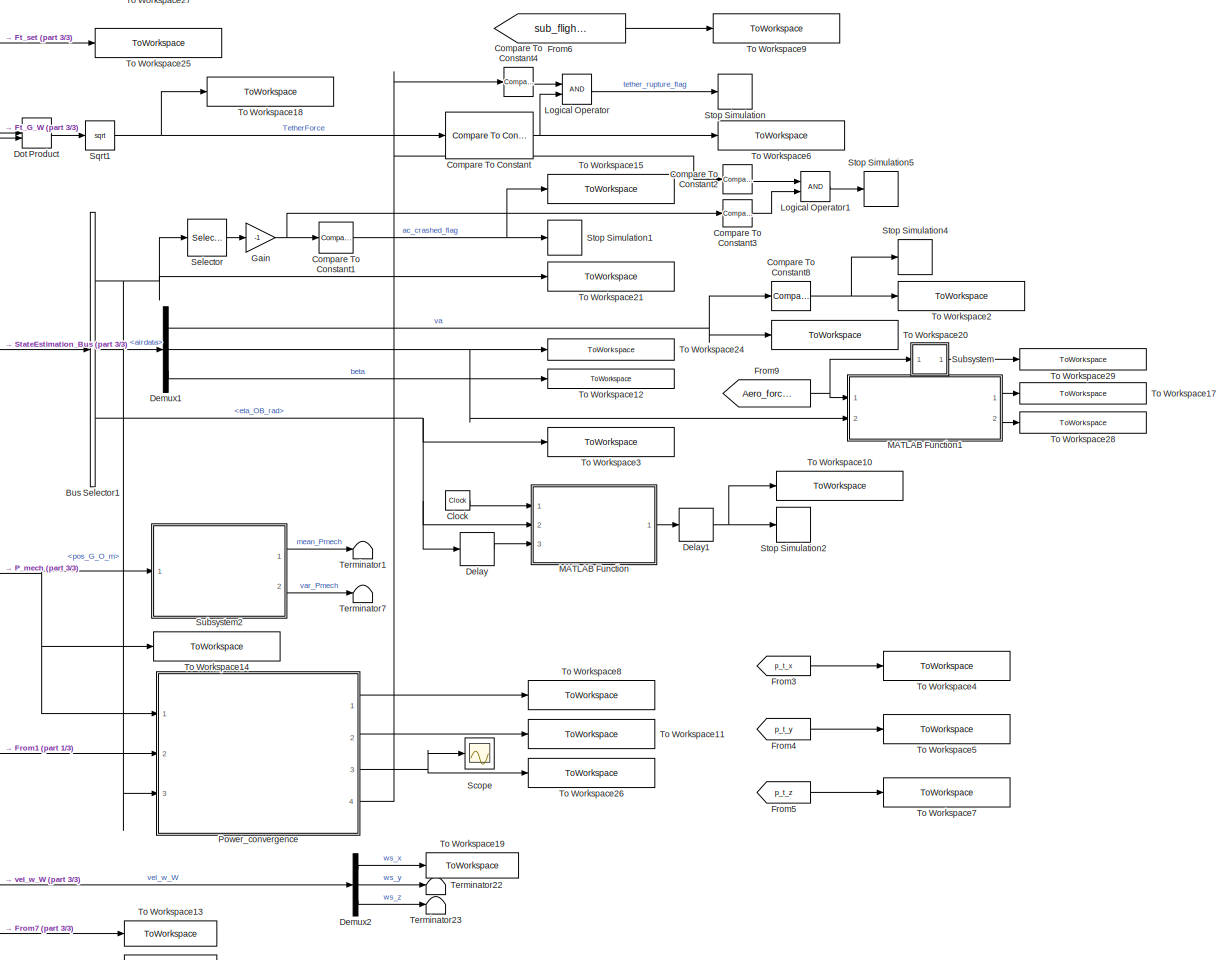
[diagram: RequirementModelsAndLogging - part 2/3, full width, middle band]
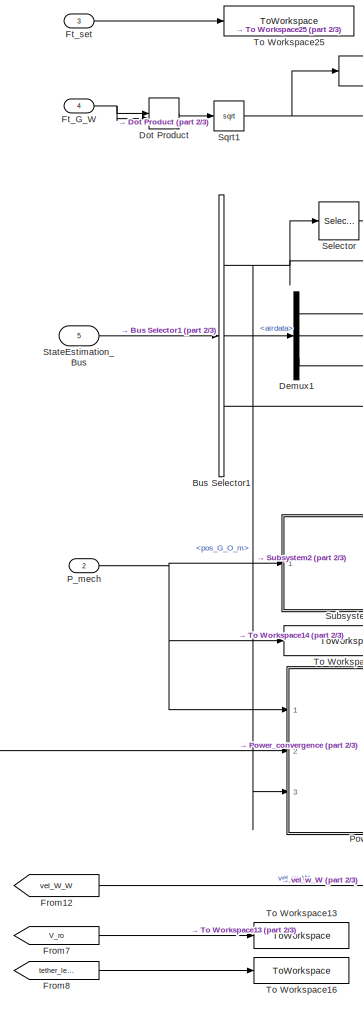
[diagram: RequirementModelsAndLogging - part 3/3, left side, full height]
BLOCK [SubSystem] RequirementModelsAndLogging
  Ports = [5]
  RequestExecContextInheritance = off
BLOCK [BusSelector] RequirementModelsAndLogging/Bus Selector1
  OutputAsBus = off
  OutputSignals = pos_G_O_m,airdata,eta_OB_rad
  Ports = [1, 3]
BLOCK [Clock] RequirementModelsAndLogging/Clock
BLOCK [Reference] RequirementModelsAndLogging/Compare To Constant  REF=simulink/Logic and Bit
Operations/Compare
To Constant
  Ports = [1, 1]
  SourceBlock = simulink/Logic and Bit\nOperations/Compare\nTo Constant
  SourceProductBaseCode = SL
  SourceType = Compare To Constant
BLOCK [Reference] RequirementModelsAndLogging/Compare To Constant1  REF=simulink/Logic and Bit
Operations/Compare
To Constant
  Ports = [1, 1]
  SourceBlock = simulink/Logic and Bit\nOperations/Compare\nTo Constant
  SourceProductBaseCode = SL
  SourceType = Compare To Constant
BLOCK [Reference] RequirementModelsAndLogging/Compare To Constant2  REF=simulink/Logic and Bit
Operations/Compare
To Constant
  Ports = [1, 1]
  SourceBlock = simulink/Logic and Bit\nOperations/Compare\nTo Constant
  SourceProductBaseCode = SL
  SourceType = Compare To Constant
BLOCK [Reference] RequirementModelsAndLogging/Compare To Constant3  REF=simulink/Logic and Bit
Operations/Compare
To Constant
  Ports = [1, 1]
  SourceBlock = simulink/Logic and Bit\nOperations/Compare\nTo Constant
  SourceProductBaseCode = SL
  SourceType = Compare To Constant
BLOCK [Reference] RequirementModelsAndLogging/Compare To Constant4  REF=simulink/Logic and Bit
Operations/Compare
To Constant
  Ports = [1, 1]
  SourceBlock = simulink/Logic and Bit\nOperations/Compare\nTo Constant
  SourceProductBaseCode = SL
  SourceType = Compare To Constant
BLOCK [Reference] RequirementModelsAndLogging/Compare To Constant5  REF=simulink/Logic and Bit
Operations/Compare
To Constant
  Ports = [1, 1]
  SourceBlock = simulink/Logic and Bit\nOperations/Compare\nTo Constant
  SourceProductBaseCode = SL
  SourceType = Compare To Constant
BLOCK [Reference] RequirementModelsAndLogging/Compare To Constant6  REF=simulink/Logic and Bit
Operations/Compare
To Constant
  Ports = [1, 1]
  SourceBlock = simulink/Logic and Bit\nOperations/Compare\nTo Constant
  SourceProductBaseCode = SL
  SourceType = Compare To Constant
BLOCK [Reference] RequirementModelsAndLogging/Compare To Constant7  REF=simulink/Logic and Bit
Operations/Compare
To Constant
  Ports = [1, 1]
  SourceBlock = simulink/Logic and Bit\nOperations/Compare\nTo Constant
  SourceProductBaseCode = SL
  SourceType = Compare To Constant
BLOCK [Reference] RequirementModelsAndLogging/Compare To Constant8  REF=simulink/Logic and Bit
Operations/Compare
To Constant
  Ports = [1, 1]
  SourceBlock = simulink/Logic and Bit\nOperations/Compare\nTo Constant
  SourceProductBaseCode = SL
  SourceType = Compare To Constant
BLOCK [Constant] RequirementModelsAndLogging/Constant7
  Value = 0
BLOCK [Delay] RequirementModelsAndLogging/Delay
  DelayLength = 1
  InitialCondition = zeros(3,1)
  InputPortMap = u0
  Ports = [1, 1]
BLOCK [Delay] RequirementModelsAndLogging/Delay1
  DelayLength = 1
  InputPortMap = u0
  Ports = [1, 1]
BLOCK [Demux] RequirementModelsAndLogging/Demux1
  DisplayOption = bar
  Outputs = 3
  Ports = [1, 3]
BLOCK [Demux] RequirementModelsAndLogging/Demux2
  DisplayOption = bar
  Outputs = 3
  Ports = [1, 3]
BLOCK [DotProduct] RequirementModelsAndLogging/Dot Product
  OutDataTypeStr = Inherit: Inherit via internal rule
BLOCK [From] RequirementModelsAndLogging/From
  GotoTag = cross_track_error
  TagVisibility = global
BLOCK [From] RequirementModelsAndLogging/From1
  GotoTag = flight_mode
  TagVisibility = global
BLOCK [From] RequirementModelsAndLogging/From12
  GotoTag = vel_W_W
  TagVisibility = global
BLOCK [From] RequirementModelsAndLogging/From2
  GotoTag = deltaRetractionSlope
  TagVisibility = global
BLOCK [From] RequirementModelsAndLogging/From3
  GotoTag = p_t_x
  TagVisibility = global
BLOCK [From] RequirementModelsAndLogging/From4
  GotoTag = p_t_y
  TagVisibility = global
BLOCK [From] RequirementModelsAndLogging/From5
  GotoTag = p_t_z
  TagVisibility = global
BLOCK [From] RequirementModelsAndLogging/From6
  GotoTag = sub_flight_state
  TagVisibility = global
BLOCK [From] RequirementModelsAndLogging/From7
  GotoTag = V_ro
  TagVisibility = global
BLOCK [From] RequirementModelsAndLogging/From8
  GotoTag = tether_length
  TagVisibility = global
BLOCK [From] RequirementModelsAndLogging/From9
  GotoTag = Aero_forces
  TagVisibility = global
BLOCK [Inport] RequirementModelsAndLogging/Ft_G_W
  IconDisplay = Port number
  Port = 4
BLOCK [Inport] RequirementModelsAndLogging/Ft_set
  IconDisplay = Port number
  Port = 3
BLOCK [Gain] RequirementModelsAndLogging/Gain
  Gain = -1
  OutDataTypeStr = Inherit: Inherit via internal rule
  ParamDataTypeStr = Inherit: Inherit via internal rule
  SaturateOnIntegerOverflow = off
BLOCK [Logic] RequirementModelsAndLogging/Logical Operator
  AllPortsSameDT = off
  OutDataTypeStr = boolean
  Ports = [2, 1]
BLOCK [Logic] RequirementModelsAndLogging/Logical Operator1
  AllPortsSameDT = off
  OutDataTypeStr = boolean
  Ports = [2, 1]
BLOCK [SubSystem] RequirementModelsAndLogging/MATLAB Function
  ErrorFcn = Stateflow.Translate.translate
  PermitHierarchicalResolution = ExplicitOnly
  Ports = [3, 1]
  RequestExecContextInheritance = off
  SFBlockType = MATLAB Function
  TreatAsAtomicUnit = on
BLOCK [Demux] RequirementModelsAndLogging/MATLAB Function/ Demux 
  DisplayOption = bar
  Outputs = 1
  Ports = [1, 1]
BLOCK [S-Function] RequirementModelsAndLogging/MATLAB Function/ SFunction 
  EnableBusSupport = on
  FunctionName = sf_sfun
  PortCounts = [3 2]
  Ports = [3, 2]
  SFcnIsStateOwnerBlock = off
  SFunctionDeploymentMode = off
  Tag = Stateflow S-Function 14
BLOCK [Terminator] RequirementModelsAndLogging/MATLAB Function/ Terminator 
BLOCK [Inport] RequirementModelsAndLogging/MATLAB Function/eul
  IconDisplay = Port number
  Port = 2
BLOCK [Inport] RequirementModelsAndLogging/MATLAB Function/eul_old
  IconDisplay = Port number
  Port = 3
BLOCK [Outport] RequirementModelsAndLogging/MATLAB Function/stop_flag
  IconDisplay = Port number
BLOCK [Inport] RequirementModelsAndLogging/MATLAB Function/time
  IconDisplay = Port number
BLOCK [SubSystem] RequirementModelsAndLogging/MATLAB Function1
  ErrorFcn = Stateflow.Translate.translate
  PermitHierarchicalResolution = ExplicitOnly
  Ports = [2, 2]
  RequestExecContextInheritance = off
  SFBlockType = MATLAB Function
  TreatAsAtomicUnit = on
BLOCK [Demux] RequirementModelsAndLogging/MATLAB Function1/ Demux 
  DisplayOption = bar
  Outputs = 1
  Ports = [1, 1]
BLOCK [S-Function] RequirementModelsAndLogging/MATLAB Function1/ SFunction 
  EnableBusSupport = on
  FunctionName = sf_sfun
  PortCounts = [2 3]
  Ports = [2, 3]
  SFcnIsStateOwnerBlock = off
  SFunctionDeploymentMode = off
  Tag = Stateflow S-Function 15
BLOCK [Terminator] RequirementModelsAndLogging/MATLAB Function1/ Terminator 
BLOCK [Inport] RequirementModelsAndLogging/MATLAB Function1/AoA
  IconDisplay = Port number
  Port = 2
BLOCK [Outport] RequirementModelsAndLogging/MATLAB Function1/Drag
  IconDisplay = Port number
  Port = 2
  VectorParamsAs1DForOutWhenUnconnected = off
BLOCK [Inport] RequirementModelsAndLogging/MATLAB Function1/F_a_B
  IconDisplay = Port number
BLOCK [Outport] RequirementModelsAndLogging/MATLAB Function1/Lift
  IconDisplay = Port number
BLOCK [Inport] RequirementModelsAndLogging/P_mech
  IconDisplay = Port number
  Port = 2
BLOCK [SubSystem] RequirementModelsAndLogging/Power_convergence
  Ports = [3, 4]
  RequestExecContextInheritance = off
BLOCK [Logic] RequirementModelsAndLogging/Power_convergence/AND
  AllPortsSameDT = off
  OutDataTypeStr = boolean
  Ports = [2, 1]
BLOCK [Sum] RequirementModelsAndLogging/Power_convergence/Add
  Commented = on
  InputSameDT = off
  Inputs = +-
  OutDataTypeStr = Inherit: Inherit via internal rule
  Ports = [2, 1]
  SaturateOnIntegerOverflow = off
BLOCK [Reference] RequirementModelsAndLogging/Power_convergence/Compare To Constant  REF=simulink/Logic and Bit
Operations/Compare
To Constant
  Commented = on
  Ports = [1, 1]
  SourceBlock = simulink/Logic and Bit\nOperations/Compare\nTo Constant
  SourceProductBaseCode = SL
  SourceType = Compare To Constant
BLOCK [Reference] RequirementModelsAndLogging/Power_convergence/Compare To Constant1  REF=simulink/Logic and Bit
Operations/Compare
To Constant
  Ports = [1, 1]
  SourceBlock = simulink/Logic and Bit\nOperations/Compare\nTo Constant
  SourceProductBaseCode = SL
  SourceType = Compare To Constant
BLOCK [Reference] RequirementModelsAndLogging/Power_convergence/Compare To Constant2  REF=simulink/Logic and Bit
Operations/Compare
To Constant
  Commented = on
  Ports = [1, 1]
  SourceBlock = simulink/Logic and Bit\nOperations/Compare\nTo Constant
  SourceProductBaseCode = SL
  SourceType = Compare To Constant
BLOCK [Reference] RequirementModelsAndLogging/Power_convergence/Compare To Constant3  REF=simulink/Logic and Bit
Operations/Compare
To Constant
  Commented = on
  Ports = [1, 1]
  SourceBlock = simulink/Logic and Bit\nOperations/Compare\nTo Constant
  SourceProductBaseCode = SL
  SourceType = Compare To Constant
BLOCK [Reference] RequirementModelsAndLogging/Power_convergence/Compare To Constant4  REF=simulink/Logic and Bit
Operations/Compare
To Constant
  Commented = on
  Ports = [1, 1]
  SourceBlock = simulink/Logic and Bit\nOperations/Compare\nTo Constant
  SourceProductBaseCode = SL
  SourceProductName = Simulink
  SourceType = Compare To Constant
BLOCK [Constant] RequirementModelsAndLogging/Power_convergence/Constant
  Value = threshold/min_cycles
BLOCK [Delay] RequirementModelsAndLogging/Power_convergence/Delay
  Commented = on
  DelayLength = 10
  InputPortMap = u0
  Ports = [1, 1]
BLOCK [Delay] RequirementModelsAndLogging/Power_convergence/Delay1
  DelayLength = 1
  InitialCondition = 0
  InputPortMap = u0
  Ports = [1, 1]
BLOCK [Delay] RequirementModelsAndLogging/Power_convergence/Delay10
  Commented = on
  DelayLength = 1
  ExternalReset = Rising
  InitialCondition = 0
  InitialConditionSource = Input port
  InputPortMap = u0,r5,p4
  Ports = [3, 1]
BLOCK [Delay] RequirementModelsAndLogging/Power_convergence/Delay12
  Commented = on
  DelayLength = 1
  InitialCondition = 0
  InputPortMap = u0
  Ports = [1, 1]
BLOCK [Delay] RequirementModelsAndLogging/Power_convergence/Delay14
  Commented = on
  DelayLength = 1
  ExternalReset = Rising
  InitialCondition = 0
  InitialConditionSource = Input port
  InputPortMap = u0,r5,p4
  Ports = [3, 1]
BLOCK [Delay] RequirementModelsAndLogging/Power_convergence/Delay2
  DelayLength = 1
  InitialCondition = 0
  InputPortMap = u0
  Ports = [1, 1]
BLOCK [Delay] RequirementModelsAndLogging/Power_convergence/Delay3
  DelayLength = 1
  InitialCondition = 0
  InputPortMap = u0
  Ports = [1, 1]
BLOCK [Delay] RequirementModelsAndLogging/Power_convergence/Delay4
  DelayLength = 1
  InitialCondition = 0
  InputPortMap = u0
  Ports = [1, 1]
BLOCK [Delay] RequirementModelsAndLogging/Power_convergence/Delay5
  DelayLength = 1
  InitialCondition = threshold+1000
  InputPortMap = u0
  Ports = [1, 1]
BLOCK [Delay] RequirementModelsAndLogging/Power_convergence/Delay6
  DelayLength = 1
  InitialCondition = 0
  InputPortMap = u0
  Ports = [1, 1]
BLOCK [Delay] RequirementModelsAndLogging/Power_convergence/Delay7
  DelayLength = 1
  InitialCondition = 0
  InputPortMap = u0
  Ports = [1, 1]
BLOCK [Delay] RequirementModelsAndLogging/Power_convergence/Delay8
  Commented = on
  DelayLength = 1
  ExternalReset = Rising
  InitialCondition = 0
  InputPortMap = u0,r5
  Ports = [2, 1]
BLOCK [Reference] RequirementModelsAndLogging/Power_convergence/Detect Change  REF=simulink/Logic and Bit
Operations/Detect
Change
  Commented = on
  Ports = [1, 1]
  SourceBlock = simulink/Logic and Bit\nOperations/Detect\nChange
  SourceProductBaseCode = SL
  SourceProductName = Simulink
  SourceType = Detect Change
BLOCK [DotProduct] RequirementModelsAndLogging/Power_convergence/Dot Product
  Commented = on
  OutDataTypeStr = Inherit: Inherit via internal rule
BLOCK [SubSystem] RequirementModelsAndLogging/Power_convergence/MATLAB Function
  ErrorFcn = Stateflow.Translate.translate
  PermitHierarchicalResolution = ExplicitOnly
  Ports = [9, 7]
  RequestExecContextInheritance = off
  SFBlockType = MATLAB Function
  TreatAsAtomicUnit = on
BLOCK [Demux] RequirementModelsAndLogging/Power_convergence/MATLAB Function/ Demux 
  DisplayOption = bar
  Outputs = 1
  Ports = [1, 1]
BLOCK [S-Function] RequirementModelsAndLogging/Power_convergence/MATLAB Function/ SFunction 
  EnableBusSupport = on
  FunctionName = sf_sfun
  PortCounts = [9 8]
  Ports = [9, 8]
  SFcnIsStateOwnerBlock = off
  SFunctionDeploymentMode = off
  Tag = Stateflow S-Function 101
BLOCK [Terminator] RequirementModelsAndLogging/Power_convergence/MATLAB Function/ Terminator 
BLOCK [Outport] RequirementModelsAndLogging/Power_convergence/MATLAB Function/cnt
  IconDisplay = Port number
  Port = 4
  VectorParamsAs1DForOutWhenUnconnected = off
BLOCK [Inport] RequirementModelsAndLogging/Power_convergence/MATLAB Function/cnt 
  IconDisplay = Port number
  Port = 4
BLOCK [Outport] RequirementModelsAndLogging/Power_convergence/MATLAB Function/cnt_max_mat
  IconDisplay = Port number
  Port = 6
  VectorParamsAs1DForOutWhenUnconnected = off
BLOCK [Inport] RequirementModelsAndLogging/Power_convergence/MATLAB Function/cnt_max_mat 
  IconDisplay = Port number
  Port = 8
BLOCK [Outport] RequirementModelsAndLogging/Power_convergence/MATLAB Function/cycles_cnt
  IconDisplay = Port number
  Port = 7
BLOCK [Inport] RequirementModelsAndLogging/Power_convergence/MATLAB Function/cycles_cnt 
  IconDisplay = Port number
  Port = 9
BLOCK [Outport] RequirementModelsAndLogging/Power_convergence/MATLAB Function/e_new
  IconDisplay = Port number
  Port = 5
  VectorParamsAs1DForOutWhenUnconnected = off
BLOCK [Inport] RequirementModelsAndLogging/Power_convergence/MATLAB Function/e_old
  IconDisplay = Port number
  Port = 7
BLOCK [Outport] RequirementModelsAndLogging/Power_convergence/MATLAB Function/flag
  IconDisplay = Port number
  VectorParamsAs1DForOutWhenUnconnected = off
BLOCK [Inport] RequirementModelsAndLogging/Power_convergence/MATLAB Function/flag 
  IconDisplay = Port number
BLOCK [Inport] RequirementModelsAndLogging/Power_convergence/MATLAB Function/flightMode
  IconDisplay = Port number
  Port = 6
BLOCK [Outport] RequirementModelsAndLogging/Power_convergence/MATLAB Function/m_new
  IconDisplay = Port number
  Port = 2
  VectorParamsAs1DForOutWhenUnconnected = off
BLOCK [Inport] RequirementModelsAndLogging/Power_convergence/MATLAB Function/m_old
  IconDisplay = Port number
  Port = 2
BLOCK [Outport] RequirementModelsAndLogging/Power_convergence/MATLAB Function/p_sum
  IconDisplay = Port number
  Port = 3
  VectorParamsAs1DForOutWhenUnconnected = off
BLOCK [Inport] RequirementModelsAndLogging/Power_convergence/MATLAB Function/p_sum 
  IconDisplay = Port number
  Port = 3
BLOCK [Inport] RequirementModelsAndLogging/Power_convergence/MATLAB Function/u
  IconDisplay = Port number
  Port = 5
BLOCK [Product] RequirementModelsAndLogging/Power_convergence/Matrix Multiply
  InputSameDT = off
  OutDataTypeStr = Inherit: Inherit via internal rule
  Ports = [2, 1]
  RndMeth = Floor
  SaturateOnIntegerOverflow = off
BLOCK [Outport] RequirementModelsAndLogging/Power_convergence/No_cycles
  IconDisplay = Port number
  Port = 4
BLOCK [Inport] RequirementModelsAndLogging/Power_convergence/P_mech
  IconDisplay = Port number
BLOCK [RateTransition] RequirementModelsAndLogging/Power_convergence/Rate Transition8
  Commented = on
  InitialCondition = [0;0;0]
  OutPortSampleTime = sample_time
BLOCK [RelationalOperator] RequirementModelsAndLogging/Power_convergence/Relational Operator
  InputSameDT = off
  Operator = <=
  OutDataTypeStr = boolean
  Ports = [2, 1]
  RndMeth = Simplest
BLOCK [Sqrt] RequirementModelsAndLogging/Power_convergence/Sqrt
  Commented = on
BLOCK [Stop] RequirementModelsAndLogging/Power_convergence/Stop Simulation
BLOCK [ToWorkspace] RequirementModelsAndLogging/Power_convergence/To Workspace
  FixptAsFi = on
  MaxDataPoints = 1
  Ports = [1]
  SampleTime = -1
  SaveFormat = Timeseries
  VariableName = No_of_Cycles
BLOCK [Outport] RequirementModelsAndLogging/Power_convergence/cycle_signal_counter
  IconDisplay = Port number
  Port = 2
  VectorParamsAs1DForOutWhenUnconnected = off
BLOCK [Outport] RequirementModelsAndLogging/Power_convergence/error_power
  IconDisplay = Port number
  Port = 3
  VectorParamsAs1DForOutWhenUnconnected = off
BLOCK [Inport] RequirementModelsAndLogging/Power_convergence/flightMode
  IconDisplay = Port number
  Port = 2
BLOCK [Inport] RequirementModelsAndLogging/Power_convergence/pos
  IconDisplay = Port number
  Port = 3
BLOCK [Outport] RequirementModelsAndLogging/Power_convergence/power_conv_flag
  IconDisplay = Port number
  VectorParamsAs1DForOutWhenUnconnected = off
BLOCK [Scope] RequirementModelsAndLogging/Scope
  Floating = off
  NumInputPorts = 1
  Ports = [1]
  ScopeSpecificationString = Simulink.scopes.TimeScopeBlockCfg('CurrentConfiguration', extmgr.ConfigurationSet(extmgr.Configuration('Core','General UI',true),extmgr.Configuration('Core','Source UI',true),extmgr.Configuration('Sources','WiredSimulink',true,'DataLoggingVariableName','ScopeData1'),extmgr.Configuration('Visuals','Time Domain',true,'SerializedDisplays',{struct('MinYLimReal','-168369.29524','MaxYLimReal','2411885.3...<+1494ch>
BLOCK [Selector] RequirementModelsAndLogging/Selector
  IndexOptions = Index vector (dialog)
  Indices = 3
  InputPortWidth = 3
  OutputSizes = 1
  Ports = [1, 1]
BLOCK [Sqrt] RequirementModelsAndLogging/Sqrt1
BLOCK [Inport] RequirementModelsAndLogging/StateEstimation_Bus
  IconDisplay = Port number
  Port = 5
BLOCK [Stop] RequirementModelsAndLogging/Stop Simulation
BLOCK [Stop] RequirementModelsAndLogging/Stop Simulation1
BLOCK [Stop] RequirementModelsAndLogging/Stop Simulation2
BLOCK [Stop] RequirementModelsAndLogging/Stop Simulation3
BLOCK [Stop] RequirementModelsAndLogging/Stop Simulation4
BLOCK [Stop] RequirementModelsAndLogging/Stop Simulation5
BLOCK [SubSystem] RequirementModelsAndLogging/Subsystem
  Ports = [1, 1]
  RequestExecContextInheritance = off
BLOCK [DotProduct] RequirementModelsAndLogging/Subsystem/Dot Product3
  OutDataTypeStr = Inherit: Inherit via internal rule
BLOCK [Inport] RequirementModelsAndLogging/Subsystem/In1
  IconDisplay = Port number
BLOCK [Outport] RequirementModelsAndLogging/Subsystem/Out1
  IconDisplay = Port number
BLOCK [Sqrt] RequirementModelsAndLogging/Subsystem/Sqrt1
BLOCK [SubSystem] RequirementModelsAndLogging/Subsystem2
  Commented = on
  Ports = [1, 2]
  RequestExecContextInheritance = off
BLOCK [Constant] RequirementModelsAndLogging/Subsystem2/Constant7
BLOCK [Delay] RequirementModelsAndLogging/Subsystem2/Delay1
  DelayLength = 1
  InputPortMap = u0
  Ports = [1, 1]
  SampleTime = 0.1
BLOCK [Delay] RequirementModelsAndLogging/Subsystem2/Delay3
  DelayLength = 1
  InputPortMap = u0
  Ports = [1, 1]
  SampleTime = 0.1
BLOCK [Delay] RequirementModelsAndLogging/Subsystem2/Delay4
  DelayLength = 1
  InitialCondition = 1
  InputPortMap = u0
  Ports = [1, 1]
  SampleTime = 0.1
BLOCK [Product] RequirementModelsAndLogging/Subsystem2/Divide
  InputSameDT = off
  Inputs = */
  OutDataTypeStr = Inherit: Inherit via internal rule
  Ports = [2, 1]
  RndMeth = Floor
  SaturateOnIntegerOverflow = off
BLOCK [Product] RequirementModelsAndLogging/Subsystem2/Divide1
  InputSameDT = off
  Inputs = */
  OutDataTypeStr = Inherit: Inherit via internal rule
  Ports = [2, 1]
  RndMeth = Floor
  SaturateOnIntegerOverflow = off
BLOCK [Inport] RequirementModelsAndLogging/Subsystem2/P_mech
  IconDisplay = Port number
BLOCK [Product] RequirementModelsAndLogging/Subsystem2/Product
  InputSameDT = off
  OutDataTypeStr = Inherit: Inherit via internal rule
  Ports = [2, 1]
  RndMeth = Floor
  SaturateOnIntegerOverflow = off
BLOCK [RateTransition] RequirementModelsAndLogging/Subsystem2/Rate Transition1
  OutPortSampleTime = 0.1
BLOCK [RateTransition] RequirementModelsAndLogging/Subsystem2/Rate Transition6
  OutPortSampleTime = 0.1
BLOCK [Sum] RequirementModelsAndLogging/Subsystem2/Sum
  IconShape = round
  InputSameDT = off
  Inputs = |+-
  OutDataTypeStr = Inherit: Inherit via internal rule
  Ports = [2, 1]
  SaturateOnIntegerOverflow = off
BLOCK [Sum] RequirementModelsAndLogging/Subsystem2/Sum1
  IconShape = round
  InputSameDT = off
  Inputs = |++
  OutDataTypeStr = Inherit: Inherit via internal rule
  Ports = [2, 1]
  SaturateOnIntegerOverflow = off
BLOCK [Sum] RequirementModelsAndLogging/Subsystem2/Sum3
  IconShape = round
  InputSameDT = off
  Inputs = |++
  OutDataTypeStr = Inherit: Inherit via internal rule
  Ports = [2, 1]
  SaturateOnIntegerOverflow = off
BLOCK [Sum] RequirementModelsAndLogging/Subsystem2/Sum4
  IconShape = round
  InputSameDT = off
  Inputs = |++
  OutDataTypeStr = Inherit: Inherit via internal rule
  Ports = [2, 1]
  SaturateOnIntegerOverflow = off
BLOCK [ToWorkspace] RequirementModelsAndLogging/Subsystem2/To Workspace
  Commented = on
  FixptAsFi = on
  MaxDataPoints = inf
  Ports = [1]
  SampleTime = log_sample_time
  VariableName = P_mech
BLOCK [Outport] RequirementModelsAndLogging/Subsystem2/mean_Pmech
  IconDisplay = Port number
  VectorParamsAs1DForOutWhenUnconnected = off
BLOCK [Outport] RequirementModelsAndLogging/Subsystem2/var_Pmech
  IconDisplay = Port number
  Port = 2
  VectorParamsAs1DForOutWhenUnconnected = off
BLOCK [Switch] RequirementModelsAndLogging/Switch
  Criteria = u2 > Threshold
  InputSameDT = off
  SaturateOnIntegerOverflow = off
BLOCK [Switch] RequirementModelsAndLogging/Switch1
  Criteria = u2 > Threshold
  InputSameDT = off
  SaturateOnIntegerOverflow = off
BLOCK [Terminator] RequirementModelsAndLogging/Terminator1
  Commented = on
BLOCK [Terminator] RequirementModelsAndLogging/Terminator22
BLOCK [Terminator] RequirementModelsAndLogging/Terminator23
BLOCK [Terminator] RequirementModelsAndLogging/Terminator7
  Commented = on
BLOCK [ToWorkspace] RequirementModelsAndLogging/To Workspace1
  FixptAsFi = on
  MaxDataPoints = 1
  Ports = [1]
  SampleTime = -1
  VariableName = max_crosstrack_viol1
BLOCK [ToWorkspace] RequirementModelsAndLogging/To Workspace10
  FixptAsFi = on
  MaxDataPoints = 1
  Ports = [1]
  SampleTime = -1
  VariableName = bad_manoeuvre_flag
BLOCK [ToWorkspace] RequirementModelsAndLogging/To Workspace11
  FixptAsFi = on
  MaxDataPoints = 1
  Ports = [1]
  SampleTime = -1
  Save2DSignal = 2-D array (concatenate along first dimension)
  SaveFormat = Timeseries
  VariableName = cycle_signal_counter
BLOCK [ToWorkspace] RequirementModelsAndLogging/To Workspace12
  FixptAsFi = on
  MaxDataPoints = inf
  Ports = [1]
  SampleTime = simInit.AttLoggingTs
  Save2DSignal = 2-D array (concatenate along first dimension)
  SaveFormat = Timeseries
  VariableName = beta
BLOCK [ToWorkspace] RequirementModelsAndLogging/To Workspace13
  FixptAsFi = on
  MaxDataPoints = inf
  Ports = [1]
  SampleTime = simInit.PLoggingTs
  SaveFormat = Timeseries
  VariableName = v_reel
BLOCK [ToWorkspace] RequirementModelsAndLogging/To Workspace14
  FixptAsFi = on
  MaxDataPoints = inf
  Ports = [1]
  SampleTime = simInit.PLoggingTs
  SaveFormat = Timeseries
  VariableName = P_mech
BLOCK [ToWorkspace] RequirementModelsAndLogging/To Workspace15
  FixptAsFi = on
  MaxDataPoints = 1
  Ports = [1]
  SampleTime = -1
  VariableName = ground_crash
BLOCK [ToWorkspace] RequirementModelsAndLogging/To Workspace16
  FixptAsFi = on
  MaxDataPoints = inf
  Ports = [1]
  SampleTime = simInit.AttLoggingTs
  SaveFormat = Timeseries
  VariableName = tether_length
BLOCK [ToWorkspace] RequirementModelsAndLogging/To Workspace17
  FixptAsFi = on
  MaxDataPoints = inf
  Ports = [1]
  SampleTime = simInit.AttLoggingTs
  Save2DSignal = 2-D array (concatenate along first dimension)
  SaveFormat = Timeseries
  VariableName = lift
BLOCK [ToWorkspace] RequirementModelsAndLogging/To Workspace18
  FixptAsFi = on
  MaxDataPoints = inf
  Ports = [1]
  SampleTime = simInit.FtLoggingTs
  SaveFormat = Timeseries
  VariableName = TetherForce
BLOCK [ToWorkspace] RequirementModelsAndLogging/To Workspace19
  FixptAsFi = on
  MaxDataPoints = inf
  Ports = [1]
  SampleTime = simInit.PLoggingTs
  SaveFormat = Timeseries
  VariableName = v_w
BLOCK [ToWorkspace] RequirementModelsAndLogging/To Workspace2
  FixptAsFi = on
  MaxDataPoints = 1
  Ports = [1]
  SampleTime = -1
  VariableName = max_speed_viol
BLOCK [ToWorkspace] RequirementModelsAndLogging/To Workspace20
  FixptAsFi = on
  MaxDataPoints = inf
  Ports = [1]
  SampleTime = simInit.AttLoggingTs
  Save2DSignal = 2-D array (concatenate along first dimension)
  SaveFormat = Timeseries
  VariableName = va
BLOCK [ToWorkspace] RequirementModelsAndLogging/To Workspace21
  FixptAsFi = on
  MaxDataPoints = inf
  Ports = [1]
  SampleTime = simInit.PLoggingTs
  Save2DSignal = 2-D array (concatenate along first dimension)
  SaveFormat = Timeseries
  VariableName = pos_O
BLOCK [ToWorkspace] RequirementModelsAndLogging/To Workspace22
  FixptAsFi = on
  MaxDataPoints = inf
  Ports = [1]
  SampleTime = simInit.CteLoggingTs
  Save2DSignal = 2-D array (concatenate along first dimension)
  SaveFormat = Timeseries
  VariableName = CrossTrackError
BLOCK [ToWorkspace] RequirementModelsAndLogging/To Workspace23
  FixptAsFi = on
  MaxDataPoints = inf
  Ports = [1]
  SampleTime = simInit.GSLoggingTs
  Save2DSignal = 2-D array (concatenate along first dimension)
  SaveFormat = Timeseries
  VariableName = GlideslopeTrackingError
BLOCK [ToWorkspace] RequirementModelsAndLogging/To Workspace24
  FixptAsFi = on
  MaxDataPoints = inf
  Ports = [1]
  SampleTime = simInit.AttLoggingTs
  Save2DSignal = 2-D array (concatenate along first dimension)
  SaveFormat = Timeseries
  VariableName = alpha
BLOCK [ToWorkspace] RequirementModelsAndLogging/To Workspace25
  FixptAsFi = on
  MaxDataPoints = inf
  Ports = [1]
  SampleTime = simInit.FtLoggingTs
  SaveFormat = Timeseries
  VariableName = Ft_set
BLOCK [ToWorkspace] RequirementModelsAndLogging/To Workspace26
  FixptAsFi = on
  MaxDataPoints = inf
  Ports = [1]
  SampleTime = -1
  Save2DSignal = 2-D array (concatenate along first dimension)
  SaveFormat = Timeseries
  VariableName = power_conv_error
BLOCK [ToWorkspace] RequirementModelsAndLogging/To Workspace27
  FixptAsFi = on
  MaxDataPoints = inf
  Ports = [1]
  SampleTime = simInit.PLoggingTs
  SaveFormat = Timeseries
  VariableName = winch_a
BLOCK [ToWorkspace] RequirementModelsAndLogging/To Workspace28
  FixptAsFi = on
  MaxDataPoints = inf
  Ports = [1]
  SampleTime = simInit.AttLoggingTs
  Save2DSignal = 2-D array (concatenate along first dimension)
  SaveFormat = Timeseries
  VariableName = drag
BLOCK [ToWorkspace] RequirementModelsAndLogging/To Workspace29
  FixptAsFi = on
  MaxDataPoints = inf
  Ports = [1]
  SampleTime = simInit.AttLoggingTs
  Save2DSignal = 2-D array (concatenate along first dimension)
  SaveFormat = Timeseries
  VariableName = Faero
BLOCK [ToWorkspace] RequirementModelsAndLogging/To Workspace3
  FixptAsFi = on
  MaxDataPoints = inf
  Ports = [1]
  SampleTime = simInit.PLoggingTs
  Save2DSignal = 2-D array (concatenate along first dimension)
  SaveFormat = Timeseries
  VariableName = Eul_ang
BLOCK [ToWorkspace] RequirementModelsAndLogging/To Workspace4
  FixptAsFi = on
  MaxDataPoints = inf
  Ports = [1]
  SampleTime = simInit.PLoggingTs
  Save2DSignal = 2-D array (concatenate along first dimension)
  SaveFormat = Timeseries
  VariableName = Tether_x
BLOCK [ToWorkspace] RequirementModelsAndLogging/To Workspace5
  FixptAsFi = on
  MaxDataPoints = inf
  Ports = [1]
  SampleTime = simInit.PLoggingTs
  Save2DSignal = 2-D array (concatenate along first dimension)
  SaveFormat = Timeseries
  VariableName = Tether_y
BLOCK [ToWorkspace] RequirementModelsAndLogging/To Workspace6
  FixptAsFi = on
  MaxDataPoints = 1
  Ports = [1]
  SampleTime = -1
  VariableName = max_tether_force_viol
BLOCK [ToWorkspace] RequirementModelsAndLogging/To Workspace7
  FixptAsFi = on
  MaxDataPoints = inf
  Ports = [1]
  SampleTime = simInit.PLoggingTs
  Save2DSignal = 2-D array (concatenate along first dimension)
  SaveFormat = Timeseries
  VariableName = Tether_z
BLOCK [ToWorkspace] RequirementModelsAndLogging/To Workspace8
  FixptAsFi = on
  MaxDataPoints = 1
  Ports = [1]
  SampleTime = -1
  VariableName = power_conv_flag
BLOCK [ToWorkspace] RequirementModelsAndLogging/To Workspace9
  FixptAsFi = on
  MaxDataPoints = inf
  Ports = [1]
  SampleTime = simInit.FtLoggingTs
  SaveFormat = Timeseries
  VariableName = sub_flight_state
BLOCK [Inport] RequirementModelsAndLogging/winch_acc
  IconDisplay = Port number
BLOCK [Sqrt] Sqrt3
  Commented = on
BLOCK [Terminator] Terminator
BLOCK [Scope] Tether Force
  Commented = on
  Floating = off
  NumInputPorts = 3
  Ports = [3]
  ScopeSpecificationString = Simulink.scopes.TimeScopeBlockCfg('CurrentConfiguration', extmgr.ConfigurationSet(extmgr.Configuration('Core','General UI',true),extmgr.Configuration('Core','Source UI',true),extmgr.Configuration('Sources','WiredSimulink',true,'DataLoggingVariableName','ScopeData1'),extmgr.Configuration('Visuals','Time Domain',true,'SerializedDisplays',{struct('MinYLimReal','-346001.78757','MaxYLimReal','3114016.0...<+1557ch>
BLOCK [SubSystem] Visualisation
  Commented = on
  Ports = [1]
  ReferencedSubsystem = Visualisation
  RequestExecContextInheritance = off
  sample_time_vis = 1
BLOCK [Scope] Vro
  Commented = on
  Floating = off
  NumInputPorts = 1
  Ports = [1]
  ScopeSpecificationString = Simulink.scopes.TimeScopeBlockCfg('CurrentConfiguration', extmgr.ConfigurationSet(extmgr.Configuration('Core','General UI',true),extmgr.Configuration('Core','Source UI',true),extmgr.Configuration('Sources','WiredSimulink',true,'DataLoggingVariableName','ScopeData1'),extmgr.Configuration('Visuals','Time Domain',true,'SerializedDisplays',{struct('MinYLimReal','-31.25','MaxYLimReal','31.25','YLabelRe...<+1433ch>
BLOCK [SubSystem] WinchControl
  Ports = [3, 5]
  ReferencedSubsystem = WinchControl
  RequestExecContextInheritance = off
LINE AirborneSystem/AeroAndPropForces/1-D Lookup Table1:1 -> AirborneSystem/AeroAndPropForces/Aero_prop:4
LINE AirborneSystem/AeroAndPropForces/1-D Lookup Table2:1 -> AirborneSystem/AeroAndPropForces/Aero_prop:5
LINE AirborneSystem/AeroAndPropForces/1-D Lookup Table3:1 -> AirborneSystem/AeroAndPropForces/Aero_prop:6
LINE AirborneSystem/AeroAndPropForces/1-D Lookup Table4:1 -> AirborneSystem/AeroAndPropForces/Aero_prop:7
LINE AirborneSystem/AeroAndPropForces/1-D Lookup Table5:1 -> AirborneSystem/AeroAndPropForces/Aero_prop:8
LINE AirborneSystem/AeroAndPropForces/1-D Lookup Table:1 -> AirborneSystem/AeroAndPropForces/Aero_prop:3
LINE AirborneSystem/AeroAndPropForces/Aero_prop:1 -> AirborneSystem/AeroAndPropForces/F_p_B:1
NET AirborneSystem/AeroAndPropForces/Aero_prop:2 -> AirborneSystem/AeroAndPropForces/F_a_B:1, AirborneSystem/AeroAndPropForces/Goto:1, AirborneSystem/AeroAndPropForces/Selector2:1
LINE AirborneSystem/AeroAndPropForces/Radians to Degrees1:1 -> AirborneSystem/AeroAndPropForces/Saturation2:1
NET AirborneSystem/AeroAndPropForces/Radians to Degrees:1 -> AirborneSystem/AeroAndPropForces/Saturation1:1, AirborneSystem/AeroAndPropForces/Saturation:1
NET AirborneSystem/AeroAndPropForces/Saturation1:1 -> AirborneSystem/AeroAndPropForces/1-D Lookup Table2:1, AirborneSystem/AeroAndPropForces/1-D Lookup Table3:1
NET AirborneSystem/AeroAndPropForces/Saturation2:1 -> AirborneSystem/AeroAndPropForces/1-D Lookup Table4:1, AirborneSystem/AeroAndPropForces/1-D Lookup Table5:1
NET AirborneSystem/AeroAndPropForces/Saturation:1 -> AirborneSystem/AeroAndPropForces/1-D Lookup Table1:1, AirborneSystem/AeroAndPropForces/1-D Lookup Table:1
LINE AirborneSystem/AeroAndPropForces/Selector1:1 -> AirborneSystem/AeroAndPropForces/alpha:1
LINE AirborneSystem/AeroAndPropForces/Selector2:1 -> AirborneSystem/AeroAndPropForces/Scope:1
LINE AirborneSystem/AeroAndPropForces/Selector:1 -> AirborneSystem/AeroAndPropForces/Velocity:1
NET AirborneSystem/AeroAndPropForces/air_data:1 -> AirborneSystem/AeroAndPropForces/Aero_prop:1, AirborneSystem/AeroAndPropForces/Selector1:1, AirborneSystem/AeroAndPropForces/Selector:1, AirborneSystem/AeroAndPropForces/alpha select:1, AirborneSystem/AeroAndPropForces/beta select:1
LINE AirborneSystem/AeroAndPropForces/alpha select:1 -> AirborneSystem/AeroAndPropForces/Radians to Degrees:1
LINE AirborneSystem/AeroAndPropForces/beta select:1 -> AirborneSystem/AeroAndPropForces/Radians to Degrees1:1
LINE AirborneSystem/AeroAndPropForces/throttle:1 -> AirborneSystem/AeroAndPropForces/Aero_prop:2
LINE AirborneSystem/AeroAndPropForces:1 -> AirborneSystem/PointMassEOM:5
NET AirborneSystem/AeroAndPropForces:2 -> AirborneSystem/Delay2:1, AirborneSystem/PointMassEOM:6
NET AirborneSystem/AttitudeDynamics/SecondOrderReferenceModel_alpha_a/Constant:1 -> AirborneSystem/AttitudeDynamics/SecondOrderReferenceModel_alpha_a/Product1:2, AirborneSystem/AttitudeDynamics/SecondOrderReferenceModel_alpha_a/Product:1, AirborneSystem/AttitudeDynamics/SecondOrderReferenceModel_alpha_a/Product:3
NET AirborneSystem/AttitudeDynamics/SecondOrderReferenceModel_alpha_a/Discrete-Time Integrator1:1 -> AirborneSystem/AttitudeDynamics/SecondOrderReferenceModel_alpha_a/Discrete-Time Integrator:1, AirborneSystem/AttitudeDynamics/SecondOrderReferenceModel_alpha_a/Product1:1
NET AirborneSystem/AttitudeDynamics/SecondOrderReferenceModel_alpha_a/Discrete-Time Integrator:1 -> AirborneSystem/AttitudeDynamics/SecondOrderReferenceModel_alpha_a/Sum1:2, AirborneSystem/AttitudeDynamics/SecondOrderReferenceModel_alpha_a/y_ref:1
LINE AirborneSystem/AttitudeDynamics/SecondOrderReferenceModel_alpha_a/Gain2:1 -> AirborneSystem/AttitudeDynamics/SecondOrderReferenceModel_alpha_a/Sum:2
LINE AirborneSystem/AttitudeDynamics/SecondOrderReferenceModel_alpha_a/Product1:1 -> AirborneSystem/AttitudeDynamics/SecondOrderReferenceModel_alpha_a/Gain2:1
LINE AirborneSystem/AttitudeDynamics/SecondOrderReferenceModel_alpha_a/Product:1 -> AirborneSystem/AttitudeDynamics/SecondOrderReferenceModel_alpha_a/Sum:1
LINE AirborneSystem/AttitudeDynamics/SecondOrderReferenceModel_alpha_a/Saturation1:1 -> AirborneSystem/AttitudeDynamics/SecondOrderReferenceModel_alpha_a/Discrete-Time Integrator1:1
LINE AirborneSystem/AttitudeDynamics/SecondOrderReferenceModel_alpha_a/Saturation:1 -> AirborneSystem/AttitudeDynamics/SecondOrderReferenceModel_alpha_a/Sum1:1
LINE AirborneSystem/AttitudeDynamics/SecondOrderReferenceModel_alpha_a/Sum1:1 -> AirborneSystem/AttitudeDynamics/SecondOrderReferenceModel_alpha_a/Product:2
LINE AirborneSystem/AttitudeDynamics/SecondOrderReferenceModel_alpha_a/Sum:1 -> AirborneSystem/AttitudeDynamics/SecondOrderReferenceModel_alpha_a/Saturation1:1
LINE AirborneSystem/AttitudeDynamics/SecondOrderReferenceModel_alpha_a/y_cmd:1 -> AirborneSystem/AttitudeDynamics/SecondOrderReferenceModel_alpha_a/Saturation:1
NET AirborneSystem/AttitudeDynamics/SecondOrderReferenceModel_alpha_a:1 -> AirborneSystem/AttitudeDynamics/Scope:1, AirborneSystem/AttitudeDynamics/alpha_a:1
NET AirborneSystem/AttitudeDynamics/SecondOrderReferenceModel_mu_a/Constant:1 -> AirborneSystem/AttitudeDynamics/SecondOrderReferenceModel_mu_a/Product1:2, AirborneSystem/AttitudeDynamics/SecondOrderReferenceModel_mu_a/Product:1, AirborneSystem/AttitudeDynamics/SecondOrderReferenceModel_mu_a/Product:3
NET AirborneSystem/AttitudeDynamics/SecondOrderReferenceModel_mu_a/Discrete-Time Integrator1:1 -> AirborneSystem/AttitudeDynamics/SecondOrderReferenceModel_mu_a/Discrete-Time Integrator:1, AirborneSystem/AttitudeDynamics/SecondOrderReferenceModel_mu_a/Product1:1
NET AirborneSystem/AttitudeDynamics/SecondOrderReferenceModel_mu_a/Discrete-Time Integrator:1 -> AirborneSystem/AttitudeDynamics/SecondOrderReferenceModel_mu_a/Sum1:2, AirborneSystem/AttitudeDynamics/SecondOrderReferenceModel_mu_a/y_ref:1
LINE AirborneSystem/AttitudeDynamics/SecondOrderReferenceModel_mu_a/Gain2:1 -> AirborneSystem/AttitudeDynamics/SecondOrderReferenceModel_mu_a/Sum:2
LINE AirborneSystem/AttitudeDynamics/SecondOrderReferenceModel_mu_a/Product1:1 -> AirborneSystem/AttitudeDynamics/SecondOrderReferenceModel_mu_a/Gain2:1
LINE AirborneSystem/AttitudeDynamics/SecondOrderReferenceModel_mu_a/Product:1 -> AirborneSystem/AttitudeDynamics/SecondOrderReferenceModel_mu_a/Sum:1
LINE AirborneSystem/AttitudeDynamics/SecondOrderReferenceModel_mu_a/Saturation1:1 -> AirborneSystem/AttitudeDynamics/SecondOrderReferenceModel_mu_a/Discrete-Time Integrator1:1
LINE AirborneSystem/AttitudeDynamics/SecondOrderReferenceModel_mu_a/Saturation:1 -> AirborneSystem/AttitudeDynamics/SecondOrderReferenceModel_mu_a/Sum1:1
LINE AirborneSystem/AttitudeDynamics/SecondOrderReferenceModel_mu_a/Sum1:1 -> AirborneSystem/AttitudeDynamics/SecondOrderReferenceModel_mu_a/Product:2
LINE AirborneSystem/AttitudeDynamics/SecondOrderReferenceModel_mu_a/Sum:1 -> AirborneSystem/AttitudeDynamics/SecondOrderReferenceModel_mu_a/Saturation1:1
LINE AirborneSystem/AttitudeDynamics/SecondOrderReferenceModel_mu_a/y_cmd:1 -> AirborneSystem/AttitudeDynamics/SecondOrderReferenceModel_mu_a/Saturation:1
LINE AirborneSystem/AttitudeDynamics/SecondOrderReferenceModel_mu_a:1 -> AirborneSystem/AttitudeDynamics/mu_a:1
NET AirborneSystem/AttitudeDynamics/alpha_a_cmd:1 -> AirborneSystem/AttitudeDynamics/Scope:2, AirborneSystem/AttitudeDynamics/SecondOrderReferenceModel_alpha_a:1
LINE AirborneSystem/AttitudeDynamics/mu_a_cmd:1 -> AirborneSystem/AttitudeDynamics/SecondOrderReferenceModel_mu_a:1
LINE AirborneSystem/AttitudeDynamics:1 -> AirborneSystem/PointMassEOM:2
LINE AirborneSystem/AttitudeDynamics:2 -> AirborneSystem/PointMassEOM:3
LINE AirborneSystem/Bus Selector1:1 -> AirborneSystem/AeroAndPropForces:2
LINE AirborneSystem/Delay2:1 -> AirborneSystem/FlightControlSystem:3
LINE AirborneSystem/Dot Product:1 -> AirborneSystem/Sqrt:1
LINE AirborneSystem/FlightControlSystem/AirspeedController:1 -> AirborneSystem/FlightControlSystem/throttle//brake:1
NET AirborneSystem/FlightControlSystem/Bus Selector:1 -> AirborneSystem/FlightControlSystem/Selector1:1, AirborneSystem/FlightControlSystem/Selector:1
LINE AirborneSystem/FlightControlSystem/Bus Selector:2 -> AirborneSystem/FlightControlSystem/Selector2:1
LINE AirborneSystem/FlightControlSystem/Bus Selector:3 -> AirborneSystem/FlightControlSystem/AirspeedController:4
LINE AirborneSystem/FlightControlSystem/Constant:1 -> AirborneSystem/FlightControlSystem/beta_c:1
NET AirborneSystem/FlightControlSystem/F_a_B:1 -> AirborneSystem/FlightControlSystem/AirspeedController:5, AirborneSystem/FlightControlSystem/PathFollowingController:3
LINE AirborneSystem/FlightControlSystem/Ft_set:1 -> AirborneSystem/FlightControlSystem/PathFollowingController:1
NET AirborneSystem/FlightControlSystem/Ft_tot_kite:1 -> AirborneSystem/FlightControlSystem/AirspeedController:6, AirborneSystem/FlightControlSystem/PathFollowingController:2
LINE AirborneSystem/FlightControlSystem/PathFollowingController:1 -> AirborneSystem/FlightControlSystem/mu_a_cmd:1
NET AirborneSystem/FlightControlSystem/PathFollowingController:2 -> AirborneSystem/FlightControlSystem/AoA:2, AirborneSystem/FlightControlSystem/alpha_a_cmd:1
NET AirborneSystem/FlightControlSystem/Selector1:1 -> AirborneSystem/FlightControlSystem/AirspeedController:2, AirborneSystem/FlightControlSystem/AoA:1
LINE AirborneSystem/FlightControlSystem/Selector2:1 -> AirborneSystem/FlightControlSystem/AirspeedController:3
NET AirborneSystem/FlightControlSystem/Selector:1 -> AirborneSystem/FlightControlSystem/AirspeedController:1, AirborneSystem/FlightControlSystem/Va:1
NET AirborneSystem/FlightControlSystem/StateEstimation_Bus:1 -> AirborneSystem/FlightControlSystem/Bus Selector:1, AirborneSystem/FlightControlSystem/PathFollowingController:4
LINE AirborneSystem/FlightControlSystem:1 -> AirborneSystem/AttitudeDynamics:1
LINE AirborneSystem/FlightControlSystem:2 -> AirborneSystem/AttitudeDynamics:2
LINE AirborneSystem/FlightControlSystem:3 -> AirborneSystem/PointMassEOM:4
LINE AirborneSystem/FlightControlSystem:4 -> AirborneSystem/AeroAndPropForces:1
NET AirborneSystem/Ft_Kite_W:1 -> AirborneSystem/Dot Product:1, AirborneSystem/Dot Product:2, AirborneSystem/PointMassEOM:1
LINE AirborneSystem/Ft_set:1 -> AirborneSystem/FlightControlSystem:1
LINE AirborneSystem/PointMassEOM/Bus Creator1:1 -> AirborneSystem/PointMassEOM/StateEstimation_Bus:1
LINE AirborneSystem/PointMassEOM/Constant:1 -> AirborneSystem/PointMassEOM/Bus Creator1:12
LINE AirborneSystem/PointMassEOM/F_a_B:1 -> AirborneSystem/PointMassEOM/PointMassDynamics:4
LINE AirborneSystem/PointMassEOM/F_p_B:1 -> AirborneSystem/PointMassEOM/PointMassDynamics:5
LINE AirborneSystem/PointMassEOM/F_t_W:1 -> AirborneSystem/PointMassEOM/PointMassDynamics:6
LINE AirborneSystem/PointMassEOM/From:1 -> AirborneSystem/PointMassEOM/MATLAB Function3:1
NET AirborneSystem/PointMassEOM/MATLAB Function3:1 -> AirborneSystem/PointMassEOM/Bus Creator1:13, AirborneSystem/PointMassEOM/PointMassDynamics:7
LINE AirborneSystem/PointMassEOM/PointMassDynamics/Delay2:1 -> AirborneSystem/PointMassEOM/PointMassDynamics/Goto1:1
LINE AirborneSystem/PointMassEOM/PointMassDynamics/Delay:1 -> AirborneSystem/PointMassEOM/PointMassDynamics/vel_k_B:1
LINE AirborneSystem/PointMassEOM/PointMassDynamics/Demux2:1 -> AirborneSystem/PointMassEOM/PointMassDynamics/PointMassEOM:9
LINE AirborneSystem/PointMassEOM/PointMassDynamics/Demux2:2 -> AirborneSystem/PointMassEOM/PointMassDynamics/PointMassEOM:10
LINE AirborneSystem/PointMassEOM/PointMassDynamics/Demux:1 -> AirborneSystem/PointMassEOM/PointMassDynamics/PointMassEOM:11
LINE AirborneSystem/PointMassEOM/PointMassDynamics/Demux:2 -> AirborneSystem/PointMassEOM/PointMassDynamics/PointMassEOM:12
LINE AirborneSystem/PointMassEOM/PointMassDynamics/F_a_B:1 -> AirborneSystem/PointMassEOM/PointMassDynamics/PointMassEOM:6
LINE AirborneSystem/PointMassEOM/PointMassDynamics/F_p_B:1 -> AirborneSystem/PointMassEOM/PointMassDynamics/PointMassEOM:7
LINE AirborneSystem/PointMassEOM/PointMassDynamics/F_t_W:1 -> AirborneSystem/PointMassEOM/PointMassDynamics/PointMassEOM:8
NET AirborneSystem/PointMassEOM/PointMassDynamics/Integrator1:1 -> AirborneSystem/PointMassEOM/PointMassDynamics/Demux:1, AirborneSystem/PointMassEOM/PointMassDynamics/longlat:1
NET AirborneSystem/PointMassEOM/PointMassDynamics/Integrator2:1 -> AirborneSystem/PointMassEOM/PointMassDynamics/Demux2:1, AirborneSystem/PointMassEOM/PointMassDynamics/pathangles_a:1
LINE AirborneSystem/PointMassEOM/PointMassDynamics/Integrator4:1 -> AirborneSystem/PointMassEOM/PointMassDynamics/PointMassEOM:13
NET AirborneSystem/PointMassEOM/PointMassDynamics/Integrator:1 -> AirborneSystem/PointMassEOM/PointMassDynamics/Mux:1, AirborneSystem/PointMassEOM/PointMassDynamics/PointMassEOM:1
LINE AirborneSystem/PointMassEOM/PointMassDynamics/Mux1:1 -> AirborneSystem/PointMassEOM/PointMassDynamics/Integrator2:1
LINE AirborneSystem/PointMassEOM/PointMassDynamics/Mux3:1 -> AirborneSystem/PointMassEOM/PointMassDynamics/Integrator1:1
LINE AirborneSystem/PointMassEOM/PointMassDynamics/Mux4:1 -> AirborneSystem/PointMassEOM/PointMassDynamics/pathangles_k:1
LINE AirborneSystem/PointMassEOM/PointMassDynamics/Mux:1 -> AirborneSystem/PointMassEOM/PointMassDynamics/airdata:1
LINE AirborneSystem/PointMassEOM/PointMassDynamics/PointMassEOM:1 -> AirborneSystem/PointMassEOM/PointMassDynamics/Integrator:1
LINE AirborneSystem/PointMassEOM/PointMassDynamics/PointMassEOM:10 -> AirborneSystem/PointMassEOM/PointMassDynamics/vel_k_O:1
LINE AirborneSystem/PointMassEOM/PointMassDynamics/PointMassEOM:11 -> AirborneSystem/PointMassEOM/PointMassDynamics/Mux1:1
LINE AirborneSystem/PointMassEOM/PointMassDynamics/PointMassEOM:12 -> AirborneSystem/PointMassEOM/PointMassDynamics/Mux1:2
NET AirborneSystem/PointMassEOM/PointMassDynamics/PointMassEOM:13 -> AirborneSystem/PointMassEOM/PointMassDynamics/Delay2:1, AirborneSystem/PointMassEOM/PointMassDynamics/Mux3:1
LINE AirborneSystem/PointMassEOM/PointMassDynamics/PointMassEOM:14 -> AirborneSystem/PointMassEOM/PointMassDynamics/Mux3:2
LINE AirborneSystem/PointMassEOM/PointMassDynamics/PointMassEOM:15 -> AirborneSystem/PointMassEOM/PointMassDynamics/Integrator4:1
LINE AirborneSystem/PointMassEOM/PointMassDynamics/PointMassEOM:2 -> AirborneSystem/PointMassEOM/PointMassDynamics/M_OB:1
LINE AirborneSystem/PointMassEOM/PointMassDynamics/PointMassEOM:3 -> AirborneSystem/PointMassEOM/PointMassDynamics/v_k_W:1
LINE AirborneSystem/PointMassEOM/PointMassDynamics/PointMassEOM:4 -> AirborneSystem/PointMassEOM/PointMassDynamics/pos_O:1
LINE AirborneSystem/PointMassEOM/PointMassDynamics/PointMassEOM:5 -> AirborneSystem/PointMassEOM/PointMassDynamics/pos_W:1
LINE AirborneSystem/PointMassEOM/PointMassDynamics/PointMassEOM:6 -> AirborneSystem/PointMassEOM/PointMassDynamics/Delay:1
LINE AirborneSystem/PointMassEOM/PointMassDynamics/PointMassEOM:7 -> AirborneSystem/PointMassEOM/PointMassDynamics/Mux4:1
LINE AirborneSystem/PointMassEOM/PointMassDynamics/PointMassEOM:8 -> AirborneSystem/PointMassEOM/PointMassDynamics/Mux4:2
LINE AirborneSystem/PointMassEOM/PointMassDynamics/PointMassEOM:9 -> AirborneSystem/PointMassEOM/PointMassDynamics/eta_EULER:1
NET AirborneSystem/PointMassEOM/PointMassDynamics/alpha_c:1 -> AirborneSystem/PointMassEOM/PointMassDynamics/Mux:2, AirborneSystem/PointMassEOM/PointMassDynamics/PointMassEOM:2
NET AirborneSystem/PointMassEOM/PointMassDynamics/beta_c:1 -> AirborneSystem/PointMassEOM/PointMassDynamics/Mux:3, AirborneSystem/PointMassEOM/PointMassDynamics/PointMassEOM:3
LINE AirborneSystem/PointMassEOM/PointMassDynamics/mu_a_c:1 -> AirborneSystem/PointMassEOM/PointMassDynamics/PointMassEOM:5
LINE AirborneSystem/PointMassEOM/PointMassDynamics/v_w_O:1 -> AirborneSystem/PointMassEOM/PointMassDynamics/PointMassEOM:4
LINE AirborneSystem/PointMassEOM/PointMassDynamics:1 -> AirborneSystem/PointMassEOM/Bus Creator1:2
LINE AirborneSystem/PointMassEOM/PointMassDynamics:10 -> AirborneSystem/PointMassEOM/Bus Creator1:11
LINE AirborneSystem/PointMassEOM/PointMassDynamics:11 -> AirborneSystem/PointMassEOM/M_OB:1
LINE AirborneSystem/PointMassEOM/PointMassDynamics:2 -> AirborneSystem/PointMassEOM/Bus Creator1:3
LINE AirborneSystem/PointMassEOM/PointMassDynamics:3 -> AirborneSystem/PointMassEOM/Bus Creator1:4
LINE AirborneSystem/PointMassEOM/PointMassDynamics:4 -> AirborneSystem/PointMassEOM/Bus Creator1:5
LINE AirborneSystem/PointMassEOM/PointMassDynamics:5 -> AirborneSystem/PointMassEOM/Bus Creator1:6
LINE AirborneSystem/PointMassEOM/PointMassDynamics:6 -> AirborneSystem/PointMassEOM/Bus Creator1:7
LINE AirborneSystem/PointMassEOM/PointMassDynamics:7 -> AirborneSystem/PointMassEOM/Bus Creator1:8
LINE AirborneSystem/PointMassEOM/PointMassDynamics:8 -> AirborneSystem/PointMassEOM/Bus Creator1:9
LINE AirborneSystem/PointMassEOM/PointMassDynamics:9 -> AirborneSystem/PointMassEOM/Bus Creator1:10
LINE AirborneSystem/PointMassEOM/alpha_c:1 -> AirborneSystem/PointMassEOM/PointMassDynamics:2
LINE AirborneSystem/PointMassEOM/beta_c:1 -> AirborneSystem/PointMassEOM/PointMassDynamics:3
NET AirborneSystem/PointMassEOM/mu_a_c:1 -> AirborneSystem/PointMassEOM/Bus Creator1:1, AirborneSystem/PointMassEOM/PointMassDynamics:1
LINE AirborneSystem/PointMassEOM:1 -> AirborneSystem/M_OB:1
NET AirborneSystem/PointMassEOM:2 -> AirborneSystem/Bus Selector1:1, AirborneSystem/FlightControlSystem:4, AirborneSystem/StateEstimation_Bus:1
LINE AirborneSystem/Sqrt:1 -> AirborneSystem/FlightControlSystem:2
NET AirborneSystem:1 -> Environment:3, GroundSystem:1, ParticleTetherModel:2, RequirementModelsAndLogging:5, Visualisation:1
LINE AirborneSystem:2 -> Environment:2
LINE Dot Product3:1 -> Sqrt3:1
LINE Environment:1 -> ParticleTetherModel:3
NET GroundSystem:1 -> Goto1:1, WinchControl:3
NET GroundSystem:2 -> AirborneSystem:1, RequirementModelsAndLogging:3, Tether Force:2, WinchControl:2
LINE ParticleTetherModel/Bus Selector:1 -> ParticleTetherModel/Tether:1
LINE ParticleTetherModel/Bus Selector:2 -> ParticleTetherModel/Tether:2
LINE ParticleTetherModel/Dot Product2:1 -> ParticleTetherModel/Sqrt2:1
LINE ParticleTetherModel/Selector4:1 -> ParticleTetherModel/Transpose1:1
LINE ParticleTetherModel/Selector5:1 -> ParticleTetherModel/Transpose2:1
LINE ParticleTetherModel/Selector:1 -> ParticleTetherModel/Transpose:1
LINE ParticleTetherModel/Sqrt2:1 -> ParticleTetherModel/error tether:1
LINE ParticleTetherModel/StateEstimation_Bus:1 -> ParticleTetherModel/Bus Selector:1
NET ParticleTetherModel/Tether:1 -> ParticleTetherModel/Selector4:1, ParticleTetherModel/Selector5:1, ParticleTetherModel/Selector:1
LINE ParticleTetherModel/Tether:2 -> ParticleTetherModel/Ft_ground_W:1
LINE ParticleTetherModel/Tether:3 -> ParticleTetherModel/Ft_Kite_W:1
NET ParticleTetherModel/Tether:4 -> ParticleTetherModel/Dot Product2:1, ParticleTetherModel/Dot Product2:2
LINE ParticleTetherModel/Transpose1:1 -> ParticleTetherModel/Goto1:1
NET ParticleTetherModel/Transpose2:1 -> ParticleTetherModel/Goto:1, ParticleTetherModel/pos_tether_particles_W:1
LINE ParticleTetherModel/Transpose:1 -> ParticleTetherModel/Goto2:1
LINE ParticleTetherModel/tether_length:1 -> ParticleTetherModel/Tether:4
LINE ParticleTetherModel/v_w_W_part_mat:1 -> ParticleTetherModel/Tether:3
NET ParticleTetherModel:1 -> AirborneSystem:2, Dot Product3:1, Dot Product3:2, RequirementModelsAndLogging:4
LINE ParticleTetherModel:2 -> Environment:1
NET ParticleTetherModel:3 -> GroundSystem:2, Tether Force:1, WinchControl:1
NET RequirementModelsAndLogging/Bus Selector1:1 -> RequirementModelsAndLogging/Power_convergence:3, RequirementModelsAndLogging/Selector:1, RequirementModelsAndLogging/To Workspace21:1
LINE RequirementModelsAndLogging/Bus Selector1:2 -> RequirementModelsAndLogging/Demux1:1
NET RequirementModelsAndLogging/Bus Selector1:3 -> RequirementModelsAndLogging/Delay:1, RequirementModelsAndLogging/MATLAB Function:2, RequirementModelsAndLogging/To Workspace3:1
LINE RequirementModelsAndLogging/Clock:1 -> RequirementModelsAndLogging/MATLAB Function:1
NET RequirementModelsAndLogging/Compare To Constant1:1 -> RequirementModelsAndLogging/Stop Simulation1:1, RequirementModelsAndLogging/To Workspace15:1
LINE RequirementModelsAndLogging/Compare To Constant2:1 -> RequirementModelsAndLogging/Logical Operator1:1
LINE RequirementModelsAndLogging/Compare To Constant3:1 -> RequirementModelsAndLogging/Logical Operator1:2
LINE RequirementModelsAndLogging/Compare To Constant4:1 -> RequirementModelsAndLogging/Logical Operator:1
LINE RequirementModelsAndLogging/Compare To Constant5:1 -> RequirementModelsAndLogging/Switch:2
LINE RequirementModelsAndLogging/Compare To Constant6:1 -> RequirementModelsAndLogging/Switch1:2
NET RequirementModelsAndLogging/Compare To Constant7:1 -> RequirementModelsAndLogging/Stop Simulation3:1, RequirementModelsAndLogging/To Workspace1:1
NET RequirementModelsAndLogging/Compare To Constant8:1 -> RequirementModelsAndLogging/Stop Simulation4:1, RequirementModelsAndLogging/To Workspace2:1
NET RequirementModelsAndLogging/Compare To Constant:1 -> RequirementModelsAndLogging/Logical Operator:2, RequirementModelsAndLogging/To Workspace6:1
NET RequirementModelsAndLogging/Constant7:1 -> RequirementModelsAndLogging/Switch1:3, RequirementModelsAndLogging/Switch:3
NET RequirementModelsAndLogging/Delay1:1 -> RequirementModelsAndLogging/Stop Simulation2:1, RequirementModelsAndLogging/To Workspace10:1
LINE RequirementModelsAndLogging/Delay:1 -> RequirementModelsAndLogging/MATLAB Function:3
NET RequirementModelsAndLogging/Demux1:1 -> RequirementModelsAndLogging/Compare To Constant8:1, RequirementModelsAndLogging/To Workspace20:1
NET RequirementModelsAndLogging/Demux1:2 -> RequirementModelsAndLogging/MATLAB Function1:2, RequirementModelsAndLogging/To Workspace24:1
LINE RequirementModelsAndLogging/Demux1:3 -> RequirementModelsAndLogging/To Workspace12:1
LINE RequirementModelsAndLogging/Demux2:1 -> RequirementModelsAndLogging/To Workspace19:1
LINE RequirementModelsAndLogging/Demux2:2 -> RequirementModelsAndLogging/Terminator22:1
LINE RequirementModelsAndLogging/Demux2:3 -> RequirementModelsAndLogging/Terminator23:1
LINE RequirementModelsAndLogging/Dot Product:1 -> RequirementModelsAndLogging/Sqrt1:1
LINE RequirementModelsAndLogging/From12:1 -> RequirementModelsAndLogging/Demux2:1
NET RequirementModelsAndLogging/From1:1 -> RequirementModelsAndLogging/Compare To Constant5:1, RequirementModelsAndLogging/Compare To Constant6:1, RequirementModelsAndLogging/Power_convergence:2
LINE RequirementModelsAndLogging/From2:1 -> RequirementModelsAndLogging/Switch1:1
LINE RequirementModelsAndLogging/From3:1 -> RequirementModelsAndLogging/To Workspace4:1
LINE RequirementModelsAndLogging/From4:1 -> RequirementModelsAndLogging/To Workspace5:1
LINE RequirementModelsAndLogging/From5:1 -> RequirementModelsAndLogging/To Workspace7:1
LINE RequirementModelsAndLogging/From6:1 -> RequirementModelsAndLogging/To Workspace9:1
LINE RequirementModelsAndLogging/From7:1 -> RequirementModelsAndLogging/To Workspace13:1
LINE RequirementModelsAndLogging/From8:1 -> RequirementModelsAndLogging/To Workspace16:1
NET RequirementModelsAndLogging/From9:1 -> RequirementModelsAndLogging/MATLAB Function1:1, RequirementModelsAndLogging/Subsystem:1
LINE RequirementModelsAndLogging/From:1 -> RequirementModelsAndLogging/Switch:1
NET RequirementModelsAndLogging/Ft_G_W:1 -> RequirementModelsAndLogging/Dot Product:1, RequirementModelsAndLogging/Dot Product:2
LINE RequirementModelsAndLogging/Ft_set:1 -> RequirementModelsAndLogging/To Workspace25:1
NET RequirementModelsAndLogging/Gain:1 -> RequirementModelsAndLogging/Compare To Constant1:1, RequirementModelsAndLogging/Compare To Constant3:1
LINE RequirementModelsAndLogging/Logical Operator1:1 -> RequirementModelsAndLogging/Stop Simulation5:1
LINE RequirementModelsAndLogging/Logical Operator:1 -> RequirementModelsAndLogging/Stop Simulation:1
LINE RequirementModelsAndLogging/MATLAB Function1:1 -> RequirementModelsAndLogging/To Workspace17:1
LINE RequirementModelsAndLogging/MATLAB Function1:2 -> RequirementModelsAndLogging/To Workspace28:1
LINE RequirementModelsAndLogging/MATLAB Function:1 -> RequirementModelsAndLogging/Delay1:1
NET RequirementModelsAndLogging/P_mech:1 -> RequirementModelsAndLogging/Power_convergence:1, RequirementModelsAndLogging/Subsystem2:1, RequirementModelsAndLogging/To Workspace14:1
NET RequirementModelsAndLogging/Power_convergence/AND:1 -> RequirementModelsAndLogging/Power_convergence/Stop Simulation:1, RequirementModelsAndLogging/Power_convergence/power_conv_flag:1
LINE RequirementModelsAndLogging/Power_convergence/Add:1 -> RequirementModelsAndLogging/Power_convergence/Delay14:3
LINE RequirementModelsAndLogging/Power_convergence/Compare To Constant1:1 -> RequirementModelsAndLogging/Power_convergence/AND:2
LINE RequirementModelsAndLogging/Power_convergence/Compare To Constant2:1 -> RequirementModelsAndLogging/Power_convergence/Delay8:2
LINE RequirementModelsAndLogging/Power_convergence/Compare To Constant:1 -> RequirementModelsAndLogging/Power_convergence/Delay:1
LINE RequirementModelsAndLogging/Power_convergence/Constant:1 -> RequirementModelsAndLogging/Power_convergence/Matrix Multiply:1
NET RequirementModelsAndLogging/Power_convergence/Delay10:1 -> RequirementModelsAndLogging/Power_convergence/Delay10:1, RequirementModelsAndLogging/Power_convergence/Delay12:1
LINE RequirementModelsAndLogging/Power_convergence/Delay12:1 -> RequirementModelsAndLogging/Power_convergence/Add:1
NET RequirementModelsAndLogging/Power_convergence/Delay14:1 -> RequirementModelsAndLogging/Power_convergence/Delay14:1, RequirementModelsAndLogging/Power_convergence/Dot Product:1, RequirementModelsAndLogging/Power_convergence/Dot Product:2
LINE RequirementModelsAndLogging/Power_convergence/Delay1:1 -> RequirementModelsAndLogging/Power_convergence/MATLAB Function:4
LINE RequirementModelsAndLogging/Power_convergence/Delay2:1 -> RequirementModelsAndLogging/Power_convergence/MATLAB Function:2
LINE RequirementModelsAndLogging/Power_convergence/Delay3:1 -> RequirementModelsAndLogging/Power_convergence/MATLAB Function:3
LINE RequirementModelsAndLogging/Power_convergence/Delay4:1 -> RequirementModelsAndLogging/Power_convergence/MATLAB Function:1
LINE RequirementModelsAndLogging/Power_convergence/Delay5:1 -> RequirementModelsAndLogging/Power_convergence/MATLAB Function:7
LINE RequirementModelsAndLogging/Power_convergence/Delay6:1 -> RequirementModelsAndLogging/Power_convergence/MATLAB Function:9
LINE RequirementModelsAndLogging/Power_convergence/Delay7:1 -> RequirementModelsAndLogging/Power_convergence/MATLAB Function:8
NET RequirementModelsAndLogging/Power_convergence/Detect Change:1 -> RequirementModelsAndLogging/Power_convergence/Delay10:2, RequirementModelsAndLogging/Power_convergence/Delay14:2
LINE RequirementModelsAndLogging/Power_convergence/Dot Product:1 -> RequirementModelsAndLogging/Power_convergence/Sqrt:1
LINE RequirementModelsAndLogging/Power_convergence/MATLAB Function:1 -> RequirementModelsAndLogging/Power_convergence/Delay4:1
LINE RequirementModelsAndLogging/Power_convergence/MATLAB Function:2 -> RequirementModelsAndLogging/Power_convergence/Delay2:1
LINE RequirementModelsAndLogging/Power_convergence/MATLAB Function:3 -> RequirementModelsAndLogging/Power_convergence/Delay3:1
NET RequirementModelsAndLogging/Power_convergence/MATLAB Function:4 -> RequirementModelsAndLogging/Power_convergence/Delay1:1, RequirementModelsAndLogging/Power_convergence/Delay8:1
NET RequirementModelsAndLogging/Power_convergence/MATLAB Function:5 -> RequirementModelsAndLogging/Power_convergence/Delay5:1, RequirementModelsAndLogging/Power_convergence/Relational Operator:1, RequirementModelsAndLogging/Power_convergence/error_power:1
NET RequirementModelsAndLogging/Power_convergence/MATLAB Function:6 -> RequirementModelsAndLogging/Power_convergence/Delay7:1, RequirementModelsAndLogging/Power_convergence/Detect Change:1, RequirementModelsAndLogging/Power_convergence/cycle_signal_counter:1
NET RequirementModelsAndLogging/Power_convergence/MATLAB Function:7 -> RequirementModelsAndLogging/Power_convergence/Compare To Constant1:1, RequirementModelsAndLogging/Power_convergence/Delay6:1, RequirementModelsAndLogging/Power_convergence/Matrix Multiply:2, RequirementModelsAndLogging/Power_convergence/No_cycles:1, RequirementModelsAndLogging/Power_convergence/To Workspace:1
LINE RequirementModelsAndLogging/Power_convergence/Matrix Multiply:1 -> RequirementModelsAndLogging/Power_convergence/Relational Operator:2
LINE RequirementModelsAndLogging/Power_convergence/P_mech:1 -> RequirementModelsAndLogging/Power_convergence/MATLAB Function:5
LINE RequirementModelsAndLogging/Power_convergence/Rate Transition8:1 -> RequirementModelsAndLogging/Power_convergence/Add:2
LINE RequirementModelsAndLogging/Power_convergence/Relational Operator:1 -> RequirementModelsAndLogging/Power_convergence/AND:1
LINE RequirementModelsAndLogging/Power_convergence/Sqrt:1 -> RequirementModelsAndLogging/Power_convergence/Compare To Constant4:1
NET RequirementModelsAndLogging/Power_convergence/flightMode:1 -> RequirementModelsAndLogging/Power_convergence/Compare To Constant2:1, RequirementModelsAndLogging/Power_convergence/Compare To Constant3:1, RequirementModelsAndLogging/Power_convergence/MATLAB Function:6
NET RequirementModelsAndLogging/Power_convergence/pos:1 -> RequirementModelsAndLogging/Power_convergence/Delay10:3, RequirementModelsAndLogging/Power_convergence/Rate Transition8:1
LINE RequirementModelsAndLogging/Power_convergence:1 -> RequirementModelsAndLogging/To Workspace8:1
LINE RequirementModelsAndLogging/Power_convergence:2 -> RequirementModelsAndLogging/To Workspace11:1
NET RequirementModelsAndLogging/Power_convergence:3 -> RequirementModelsAndLogging/Scope:1, RequirementModelsAndLogging/To Workspace26:1
NET RequirementModelsAndLogging/Power_convergence:4 -> RequirementModelsAndLogging/Compare To Constant2:1, RequirementModelsAndLogging/Compare To Constant4:1
LINE RequirementModelsAndLogging/Selector:1 -> RequirementModelsAndLogging/Gain:1
NET RequirementModelsAndLogging/Sqrt1:1 -> RequirementModelsAndLogging/Compare To Constant:1, RequirementModelsAndLogging/To Workspace18:1
LINE RequirementModelsAndLogging/StateEstimation_Bus:1 -> RequirementModelsAndLogging/Bus Selector1:1
LINE RequirementModelsAndLogging/Subsystem/Dot Product3:1 -> RequirementModelsAndLogging/Subsystem/Sqrt1:1
NET RequirementModelsAndLogging/Subsystem/In1:1 -> RequirementModelsAndLogging/Subsystem/Dot Product3:1, RequirementModelsAndLogging/Subsystem/Dot Product3:2
LINE RequirementModelsAndLogging/Subsystem/Sqrt1:1 -> RequirementModelsAndLogging/Subsystem/Out1:1
LINE RequirementModelsAndLogging/Subsystem2/Constant7:1 -> RequirementModelsAndLogging/Subsystem2/Rate Transition1:1
LINE RequirementModelsAndLogging/Subsystem2/Delay1:1 -> RequirementModelsAndLogging/Subsystem2/Sum1:2
LINE RequirementModelsAndLogging/Subsystem2/Delay3:1 -> RequirementModelsAndLogging/Subsystem2/Sum3:2
LINE RequirementModelsAndLogging/Subsystem2/Delay4:1 -> RequirementModelsAndLogging/Subsystem2/Sum4:2
LINE RequirementModelsAndLogging/Subsystem2/Divide1:1 -> RequirementModelsAndLogging/Subsystem2/var_Pmech:1
NET RequirementModelsAndLogging/Subsystem2/Divide:1 -> RequirementModelsAndLogging/Subsystem2/Sum:2, RequirementModelsAndLogging/Subsystem2/mean_Pmech:1
LINE RequirementModelsAndLogging/Subsystem2/P_mech:1 -> RequirementModelsAndLogging/Subsystem2/Rate Transition6:1
LINE RequirementModelsAndLogging/Subsystem2/Product:1 -> RequirementModelsAndLogging/Subsystem2/Sum1:1
LINE RequirementModelsAndLogging/Subsystem2/Rate Transition1:1 -> RequirementModelsAndLogging/Subsystem2/Sum4:1
NET RequirementModelsAndLogging/Subsystem2/Rate Transition6:1 -> RequirementModelsAndLogging/Subsystem2/Sum3:1, RequirementModelsAndLogging/Subsystem2/Sum:1, RequirementModelsAndLogging/Subsystem2/To Workspace:1
NET RequirementModelsAndLogging/Subsystem2/Sum1:1 -> RequirementModelsAndLogging/Subsystem2/Delay1:1, RequirementModelsAndLogging/Subsystem2/Divide1:1
NET RequirementModelsAndLogging/Subsystem2/Sum3:1 -> RequirementModelsAndLogging/Subsystem2/Delay3:1, RequirementModelsAndLogging/Subsystem2/Divide:1
NET RequirementModelsAndLogging/Subsystem2/Sum4:1 -> RequirementModelsAndLogging/Subsystem2/Delay4:1, RequirementModelsAndLogging/Subsystem2/Divide1:2, RequirementModelsAndLogging/Subsystem2/Divide:2
NET RequirementModelsAndLogging/Subsystem2/Sum:1 -> RequirementModelsAndLogging/Subsystem2/Product:1, RequirementModelsAndLogging/Subsystem2/Product:2
LINE RequirementModelsAndLogging/Subsystem2:1 -> RequirementModelsAndLogging/Terminator1:1
LINE RequirementModelsAndLogging/Subsystem2:2 -> RequirementModelsAndLogging/Terminator7:1
LINE RequirementModelsAndLogging/Subsystem:1 -> RequirementModelsAndLogging/To Workspace29:1
LINE RequirementModelsAndLogging/Switch1:1 -> RequirementModelsAndLogging/To Workspace23:1
NET RequirementModelsAndLogging/Switch:1 -> RequirementModelsAndLogging/Compare To Constant7:1, RequirementModelsAndLogging/To Workspace22:1
LINE RequirementModelsAndLogging/winch_acc:1 -> RequirementModelsAndLogging/To Workspace27:1
LINE Sqrt3:1 -> Tether Force:3
NET WinchControl:1 -> Goto3:1, Vro:1
LINE WinchControl:2 -> RequirementModelsAndLogging:1
LINE WinchControl:3 -> Terminator:1
LINE WinchControl:4 -> RequirementModelsAndLogging:2
NET WinchControl:5 -> Goto2:1, ParticleTetherModel:1
note: NET lines group one-source signal fan-out (src -> all destinations, sorted); 1:1 wires keep LINE
CHART AirborneSystem/PointMassEOM/PointMassDynamics/PointMassEOM states=1 transitions=1
  STATE_LABEL 'eML_blk_kernel()'
  STATE_LABEL 'SCRIPT:\n% <copyright redacted>\n%\n% Licensed under the Apache License, Version 2.0 (the "License");\n% you may not use this file except in compliance with the License.\n% You may obtain a copy of the License at\n%\n%      http://www.apache.org/licenses/LICENSE-2.0\n%\n% Unless required by applicable law or agreed to in writing, software\n% distributed under the License is distribu...<+3598ch>'
CHART AirborneSystem/AeroAndPropForces/Aero_prop states=1 transitions=1
  STATE_LABEL 'eML_blk_kernel()'
  STATE_LABEL 'SCRIPT:\n% <copyright redacted>\n%\n% Licensed under the Apache License, Version 2.0 (the "License");\n% you may not use this file except in compliance with the License.\n% You may obtain a copy of the License at\n%\n%      http://www.apache.org/licenses/LICENSE-2.0\n%\n% Unless required by applicable law or agreed to in writing, software\n% distributed under the License is distribu...<+2498ch>'
CHART RequirementModelsAndLogging/MATLAB Function states=1 transitions=1
  STATE_LABEL 'eML_blk_kernel()'
  STATE_LABEL 'SCRIPT:\n% <copyright redacted>\n%\n% Licensed under the Apache License, Version 2.0 (the "License");\n% you may not use this file except in compliance with the License.\n% You may obtain a copy of the License at\n%\n%      http://www.apache.org/licenses/LICENSE-2.0\n%\n% Unless required by applicable law or agreed to in writing, software\n% distributed under the License is distribu...<+729ch>'
CHART RequirementModelsAndLogging/MATLAB Function1 states=1 transitions=1
  STATE_LABEL 'eML_blk_kernel()'
  STATE_LABEL 'SCRIPT:\n% <copyright redacted>\n%\n% Licensed under the Apache License, Version 2.0 (the "License");\n% you may not use this file except in compliance with the License.\n% You may obtain a copy of the License at\n%\n%      http://www.apache.org/licenses/LICENSE-2.0\n%\n% Unless required by applicable law or agreed to in writing, software\n% distributed under the License is distribu...<+922ch>'
CHART AirborneSystem/PointMassEOM/MATLAB Function3 states=1 transitions=1
  STATE_LABEL 'eML_blk_kernel()'
  STATE_LABEL 'SCRIPT:\n% <copyright redacted>\n%\n% Licensed under the Apache License, Version 2.0 (the "License");\n% you may not use this file except in compliance with the License.\n% You may obtain a copy of the License at\n%\n%      http://www.apache.org/licenses/LICENSE-2.0\n%\n% Unless required by applicable law or agreed to in writing, software\n% distributed under the License is distribu...<+424ch>'
CHART RequirementModelsAndLogging/Power_convergence/MATLAB Function states=1 transitions=1
  STATE_LABEL 'eML_blk_kernel()'
  STATE_LABEL 'SCRIPT:\n% <copyright redacted>\n%\n% Licensed under the Apache License, Version 2.0 (the "License");\n% you may not use this file except in compliance with the License.\n% You may obtain a copy of the License at\n%\n%      http://www.apache.org/licenses/LICENSE-2.0\n%\n% Unless required by applicable law or agreed to in writing, software\n% distributed under the License is distribu...<+1075ch>'
